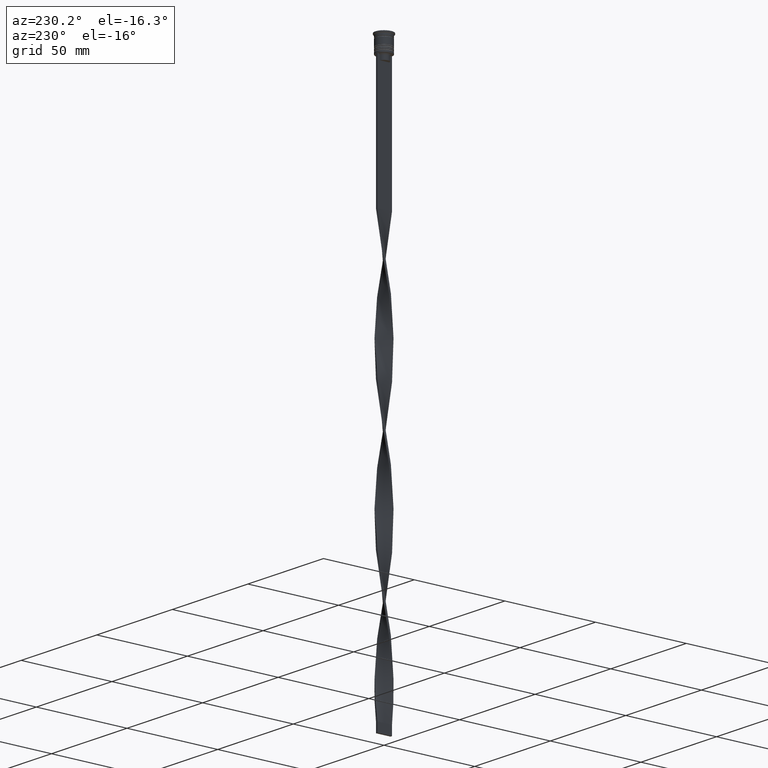
[diagram: clean part render]
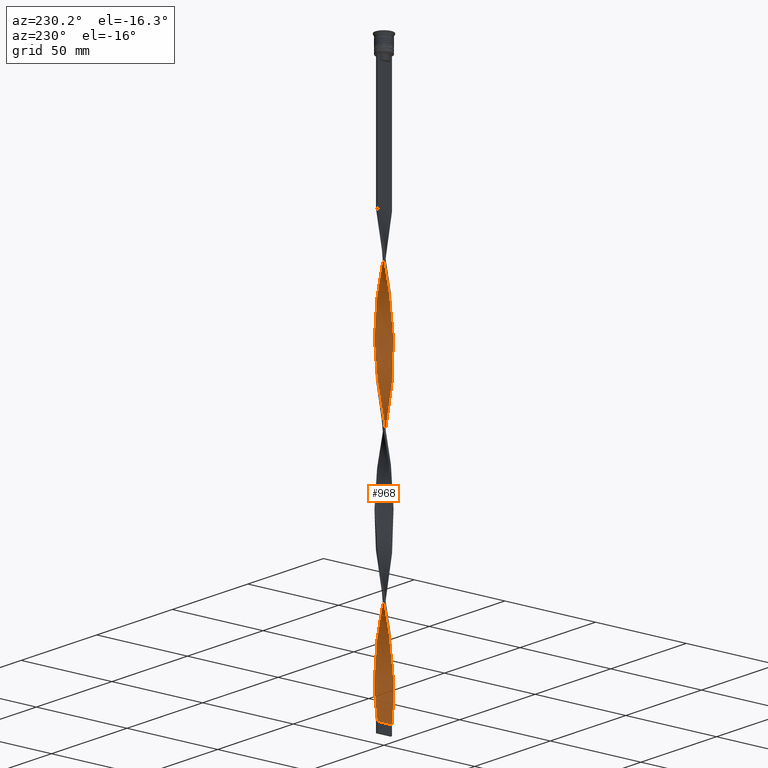
[diagram: same view with one face highlighted and labeled with its STEP entity id]
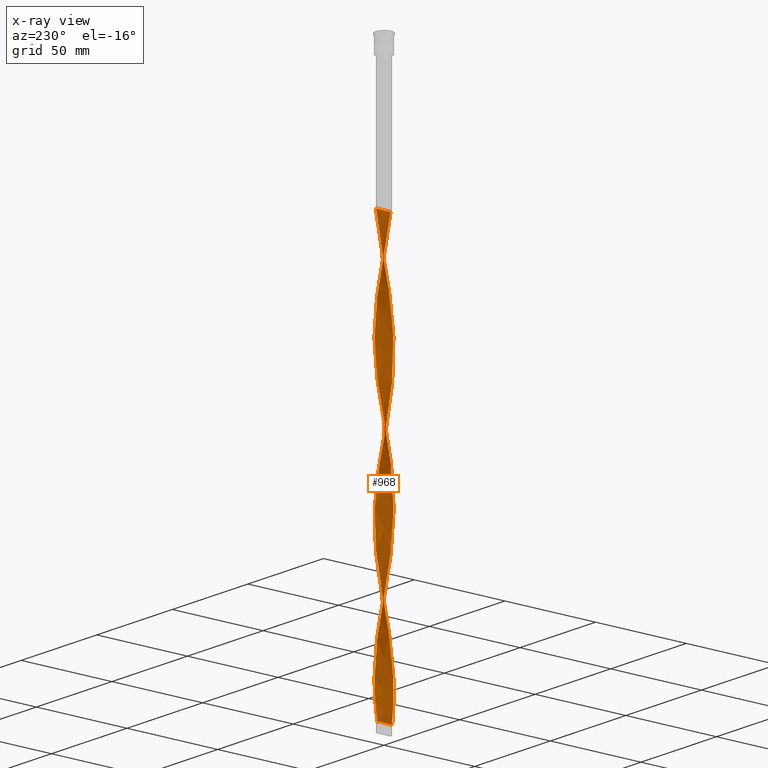
[diagram: x-ray of the same camera — body ghosted, the highlighted face saturated]
A machine part, auxiliary view. The second image highlights one B-rep face of the part: STEP entity #968.
The next image is the same camera in x-ray: the body ghosted, the highlighted face saturated — about 0% of this face is hidden behind the body in this view.
In plain terms, the highlighted face is a freeform B-spline surface patch.
Its self-contained STEP definition (entity closure, byte-faithful):
#15 = CARTESIAN_POINT ( 'NONE',  ( 3.475539122107560441, 2.069348470232189374, -207.1447368421052317 ) ) ;
#17 = CARTESIAN_POINT ( 'NONE',  ( -0.1685505501969314646, 4.041431181225382474, -151.5131578947368496 ) ) ;
#18 = CARTESIAN_POINT ( 'NONE',  ( -1.151559012824297401, -3.863147918470522413, -300.5263157894736992 ) ) ;
#28 = CARTESIAN_POINT ( 'NONE',  ( -4.000343807327721102, -0.4972418155935313666, -272.7105263157894797 ) ) ;
#35 = CARTESIAN_POINT ( 'NONE',  ( 1.771706497669051306, -3.620919232200196625, -236.9473684210526301 ) ) ;
#39 = CARTESIAN_POINT ( 'NONE',  ( 3.633328892441399116, 1.777778512611467576, -123.6973684210526443 ) ) ;
#40 = CARTESIAN_POINT ( 'NONE',  ( -1.471668575845527682, -3.767727018166428188, -298.5394736842104635 ) ) ;
#60 = CARTESIAN_POINT ( 'NONE',  ( 0.1651977094215750508, 4.027742508751256167, -149.5263157894736707 ) ) ;
#62 = CARTESIAN_POINT ( 'NONE',  ( 3.863941018946714490, -1.148895035284349442, -256.8157894736842195 ) ) ;
#81 = CARTESIAN_POINT ( 'NONE',  ( 2.349288341927600499, 3.292782951704461336, -286.6184210526315042 ) ) ;
#100 = CARTESIAN_POINT ( 'NONE',  ( -1.152832542896750967, 3.877183566532631520, -238.9342105263157521 ) ) ;
#101 = CARTESIAN_POINT ( 'NONE',  ( 4.000343807327721102, -0.4972418155935317552, -260.7894736842105203 ) ) ;
#125 = CARTESIAN_POINT ( 'NONE',  ( 0.4989459690400829817, 4.014053836277128973, -298.5394736842104635 ) ) ;
#132 = CARTESIAN_POINT ( 'NONE',  ( -4.000343807327721102, -0.4972418155935313666, -121.7105263157894797 ) ) ;
#142 = CARTESIAN_POINT ( 'NONE',  ( 3.633328892441399116, 1.777778512611467576, -274.6973684210526017 ) ) ;
#181 = CARTESIAN_POINT ( 'NONE',  ( 3.633328892441399116, -1.777778512611468464, -183.3026315789473699 ) ) ;
#195 = CARTESIAN_POINT ( 'NONE',  ( -3.959141175778332133, -0.8287197540840011145, -123.6973684210526443 ) ) ;
#198 = CARTESIAN_POINT ( 'NONE',  ( -0.4989459690400814829, 4.014053836277128973, -234.9605263157894228 ) ) ;
#199 = CARTESIAN_POINT ( 'NONE',  ( 3.959141175778332133, -0.8287197540840015586, -107.8026315789473557 ) ) ;
#217 = CARTESIAN_POINT ( 'NONE',  ( 3.087533734903235683, 2.613180192100605037, -211.1184210526315326 ) ) ;
#234 = CARTESIAN_POINT ( 'NONE',  ( -0.4999999999999994449, 4.000000000000000000, -304.5000000000000000 ) ) ;
#235 = CARTESIAN_POINT ( 'NONE',  ( 3.633328892441398672, 1.777778512611467576, -123.6973684210526443 ) ) ;
#241 = CARTESIAN_POINT ( 'NONE',  ( -2.615308476010500982, -3.085731170380873412, -139.5921052631579187 ) ) ;
#242 = CARTESIAN_POINT ( 'NONE',  ( 3.087533734903234350, -2.613180192100606813, -95.88157894736841058 ) ) ;
#258 = CARTESIAN_POINT ( 'NONE',  ( -0.1685505501969342679, -4.041431181225382474, -155.4868421052631220 ) ) ;
#260 = CARTESIAN_POINT ( 'NONE',  ( -0.8314494498030657876, 3.958568818774615750, -155.4868421052631504 ) ) ;
#261 = CARTESIAN_POINT ( 'NONE',  ( -3.462245594293745121, 2.064668361939406616, -256.8157894736842195 ) ) ;
#268 = CARTESIAN_POINT ( 'NONE',  ( 0.8258892559684172241, 3.945618701404880024, -296.5526315789473983 ) ) ;
#273 = CARTESIAN_POINT ( 'NONE',  ( -4.000343807327721102, 0.4972418155935313666, -185.2894736842105203 ) ) ;
#276 = CARTESIAN_POINT ( 'NONE',  ( -2.851421105456868332, 2.849455681240740557, -169.3947368421052602 ) ) ;
#295 = CARTESIAN_POINT ( 'NONE',  ( -0.1651977094215772157, -4.027742508751256167, -225.0263157894736992 ) ) ;
#296 = CARTESIAN_POINT ( 'NONE',  ( -0.8314494498030685632, -3.958568818774615750, -151.5131578947368496 ) ) ;
#298 = CARTESIAN_POINT ( 'NONE',  ( 3.075191833988901280, 2.606375871620971285, -129.6578947368421098 ) ) ;
#316 = CARTESIAN_POINT ( 'NONE',  ( -3.876387747932445560, -1.155505650454253574, -195.2236842105263008 ) ) ;
#317 = CARTESIAN_POINT ( 'NONE',  ( 3.754858320186921894, -1.466642081532861797, -185.2894736842105203 ) ) ;
#318 = CARTESIAN_POINT ( 'NONE',  ( -0.1651977094215772157, -4.027742508751256167, -225.0263157894736992 ) ) ;
#335 = CARTESIAN_POINT ( 'NONE',  ( -1.771706497669051084, 3.620919232200197069, -161.4473684210526301 ) ) ;
#336 = CARTESIAN_POINT ( 'NONE',  ( 2.071744419492577816, 3.474111446233964617, -219.0657894736841627 ) ) ;
#337 = CARTESIAN_POINT ( 'NONE',  ( -2.604254856879658409, -3.076988241839528015, -209.1315789473684390 ) ) ;
#349 = CARTESIAN_POINT ( 'NONE',  ( -3.768740862115096402, -1.469070316484696548, -278.6710526315789025 ) ) ;
#358 = CARTESIAN_POINT ( 'NONE',  ( -1.471668575845525240, 3.767727018166429076, -159.4605263157894797 ) ) ;
#371 = CARTESIAN_POINT ( 'NONE',  ( 1.771706497669051306, -3.620919232200196625, -85.94736842105263008 ) ) ;
#378 = CARTESIAN_POINT ( 'NONE',  ( -2.615308476010501426, -3.085731170380873412, -290.5921052631577481 ) ) ;
#385 = CARTESIAN_POINT ( 'NONE',  ( 3.945048299290513150, 0.8286096283926639439, -268.7368421052631788 ) ) ;
#393 = CARTESIAN_POINT ( 'NONE',  ( -2.859221371831710545, 2.861193531974598692, -99.85526315789472562 ) ) ;
#394 = CARTESIAN_POINT ( 'NONE',  ( 0.5000000000000000000, -4.000000000000000000, -78.00000000000000000 ) ) ;
#402 = CARTESIAN_POINT ( 'NONE',  ( 3.622139992111327533, -1.769209393358443627, -252.8421052631579187 ) ) ;
#423 = CARTESIAN_POINT ( 'NONE',  ( -3.622139992111327977, -1.769209393358442517, -129.6578947368421098 ) ) ;
#435 = CARTESIAN_POINT ( 'NONE',  ( 2.851421105456868332, -2.849455681240740557, -244.8947368421052886 ) ) ;
#458 = CARTESIAN_POINT ( 'NONE',  ( -3.633328892441398672, 1.777778512611468020, -107.8026315789473557 ) ) ;
#460 = CARTESIAN_POINT ( 'NONE',  ( -3.475539122107559553, -2.069348470232189374, -131.6447368421052602 ) ) ;
#468 = CARTESIAN_POINT ( 'NONE',  ( 3.945048299290513150, 0.8286096283926639439, -268.7368421052631788 ) ) ;
#480 = CARTESIAN_POINT ( 'NONE',  ( 4.041546438877109182, 0.1657638771030590097, -195.2236842105263008 ) ) ;
#501 = CARTESIAN_POINT ( 'NONE',  ( 2.349288341927600499, 3.292782951704461780, -135.6184210526315610 ) ) ;
#504 = CARTESIAN_POINT ( 'NONE',  ( 2.851421105456868776, 2.849455681240739668, -213.1052631578947398 ) ) ;
#518 = CARTESIAN_POINT ( 'NONE',  ( 1.151559012824296735, -3.863147918470522413, -81.97368421052631504 ) ) ;
#519 = CARTESIAN_POINT ( 'NONE',  ( 1.775272850193346796, -3.634553836156355633, -167.4078947368420813 ) ) ;
#520 = CARTESIAN_POINT ( 'NONE',  ( 3.622139992111327533, -1.769209393358443627, -101.8421052631579045 ) ) ;
#534 = CARTESIAN_POINT ( 'NONE',  ( 3.754858320186921894, 1.466642081532861797, -121.7105263157894797 ) ) ;
#537 = CARTESIAN_POINT ( 'NONE',  ( 4.013708850648581183, -0.5017136063310734251, -191.2499999999999716 ) ) ;
#562 = CARTESIAN_POINT ( 'NONE',  ( 2.859221371831710101, -2.861193531974599580, -175.3552631578947398 ) ) ;
#563 = CARTESIAN_POINT ( 'NONE',  ( 2.071744419492575595, -3.474111446233965506, -87.93421052631578050 ) ) ;
#570 = CARTESIAN_POINT ( 'NONE',  ( 3.291162296146090682, 2.351558211267345211, -278.6710526315789025 ) ) ;
#580 = CARTESIAN_POINT ( 'NONE',  ( -0.1685505501969314646, 4.041431181225382474, -151.5131578947368496 ) ) ;
#581 = CARTESIAN_POINT ( 'NONE',  ( 1.464052696545049548, -3.755868701344493132, -165.4210526315789593 ) ) ;
#582 = CARTESIAN_POINT ( 'NONE',  ( 2.349288341927600499, 3.292782951704461336, -135.6184210526315894 ) ) ;
#596 = CARTESIAN_POINT ( 'NONE',  ( -0.8258892559684176682, -3.945618701404880024, -221.0526315789473983 ) ) ;
#599 = CARTESIAN_POINT ( 'NONE',  ( -2.071744419492575151, 3.474111446233965950, -163.4342105263157805 ) ) ;
#617 = CARTESIAN_POINT ( 'NONE',  ( -4.013708850648581183, -0.5017136063310719818, -191.2499999999999432 ) ) ;
#618 = CARTESIAN_POINT ( 'NONE',  ( -0.4989459690400814273, 4.014053836277128973, -234.9605263157894228 ) ) ;
#620 = CARTESIAN_POINT ( 'NONE',  ( -3.281536428505396064, 2.341264331166400314, -173.3684210526315610 ) ) ;
#638 = CARTESIAN_POINT ( 'NONE',  ( 1.151559012824296735, -3.863147918470522413, -232.9736842105263293 ) ) ;
#640 = CARTESIAN_POINT ( 'NONE',  ( 3.291162296146090682, 2.351558211267345211, -127.6710526315789593 ) ) ;
#659 = CARTESIAN_POINT ( 'NONE',  ( 1.775272850193347685, 3.634553836156354745, -139.5921052631579187 ) ) ;
#660 = CARTESIAN_POINT ( 'NONE',  ( 4.027627644762845627, 0.1679748646140053203, -113.7631578947368496 ) ) ;
#661 = CARTESIAN_POINT ( 'NONE',  ( -4.013708850648581183, 0.5017136063310728700, -266.7499999999999432 ) ) ;
#664 = CARTESIAN_POINT ( 'NONE',  ( -3.462245594293745121, 2.064668361939406616, -105.8157894736842053 ) ) ;
#673 = CARTESIAN_POINT ( 'NONE',  ( -2.851421105456868776, -2.849455681240740113, -288.6052631578947398 ) ) ;
#681 = CARTESIAN_POINT ( 'NONE',  ( 3.768740862115096402, -1.469070316484696770, -254.8289473684210407 ) ) ;
#682 = CARTESIAN_POINT ( 'NONE',  ( -1.464052696545049548, 3.755868701344493132, -240.9210526315789309 ) ) ;
#701 = CARTESIAN_POINT ( 'NONE',  ( 3.863941018946714490, 1.148895035284349442, -201.1842105263158089 ) ) ;
#710 = CARTESIAN_POINT ( 'NONE',  ( -3.633328892441399116, 1.777778512611468020, -107.8026315789473557 ) ) ;
#718 = CARTESIAN_POINT ( 'NONE',  ( 2.851421105456868332, -2.849455681240740557, -244.8947368421052886 ) ) ;
#724 = CARTESIAN_POINT ( 'NONE',  ( -3.075191833988900836, 2.606375871620972173, -101.8421052631579045 ) ) ;
#729 = CARTESIAN_POINT ( 'NONE',  ( -1.771706497669051972, -3.620919232200196625, -296.5526315789473983 ) ) ;
#733 = CARTESIAN_POINT ( 'NONE',  ( 0.1651977094215750508, 4.027742508751256167, -300.5263157894736992 ) ) ;
#740 = CARTESIAN_POINT ( 'NONE',  ( -1.775272850193347685, 3.634553836156354745, -91.90789473684209554 ) ) ;
#776 = CARTESIAN_POINT ( 'NONE',  ( -0.8258892559684165580, 3.945618701404880024, -85.94736842105263008 ) ) ;
#793 = CARTESIAN_POINT ( 'NONE',  ( 3.475539122107559997, 2.069348470232188930, -207.1447368421052317 ) ) ;
#816 = CARTESIAN_POINT ( 'NONE',  ( 1.471668575845526350, -3.767727018166428632, -83.96052631578946546 ) ) ;
#817 = CARTESIAN_POINT ( 'NONE',  ( -3.754858320186921894, 1.466642081532862241, -260.7894736842105203 ) ) ;
#819 = CARTESIAN_POINT ( 'NONE',  ( 0.5000000000000000000, 4.000000000000000000, -78.00000000000000000 ) ) ;
#824 = CARTESIAN_POINT ( 'NONE',  ( 1.464052696545050436, 3.755868701344492688, -292.5789473684210407 ) ) ;
#832 = CARTESIAN_POINT ( 'NONE',  ( 1.152832542896750301, -3.877183566532631964, -163.4342105263157805 ) ) ;
#847 = CARTESIAN_POINT ( 'NONE',  ( -0.5000000000000002220, -1.333333333333333481, -304.5000000000000000 ) ) ;
#849 = CARTESIAN_POINT ( 'NONE',  ( 4.013708850648581183, 0.5017136063310724259, -115.7500000000000000 ) ) ;
#853 = CARTESIAN_POINT ( 'NONE',  ( -0.1651977094215744957, 4.027742508751256167, -232.9736842105263293 ) ) ;
#865 = CARTESIAN_POINT ( 'NONE',  ( -0.4999999999999994449, 4.000000000000000000, -304.5000000000000000 ) ) ;
#875 = CARTESIAN_POINT ( 'NONE',  ( 3.754858320186921894, 1.466642081532861797, -121.7105263157894797 ) ) ;
#878 =( BOUNDED_CURVE ( )  B_SPLINE_CURVE ( 2, ( #1156, #1080, #518, #816, #2628, #1404, #1098, #3289, #2028, #2317, #1739, #2967, #1440, #3329, #3712, #1558, #3028, #3411, #660, #1175, #959, #1812, #875, #39, #3087, #640, #298, #1520, #2748, #582, #3046, #1797, #3624, #3993, #1497, #1541, #1220, #17, #2091, #260, #3665, #2178, #1482, #599, #1263, #3391, #276, #2486, #620, #3010, #2726, #2400, #2709, #1855, #3942, #2770, #1241, #3970, #3348, #1197, #2426, #2444, #3645, #894, #3068, #2111, #337, #2463, #914, #2129, #3366, #3688, #936, #1835, #318, #2156, #2791, #3483, #3812, #2195, #1052, #1952, #2852, #1284, #718, #3735, #3756, #1360, #402, #2271, #62, #1619, #101, #3465, #3507, #2893, #385, #3153, #1932, #142, #2835, #1896, #3108, #1583, #2874, #81, #3169, #2581, #1000, #3135, #2816, #125, #733, #3191, #2238 ),
 .UNSPECIFIED., .F., .T. ) 
 B_SPLINE_CURVE_WITH_KNOTS ( ( 3, 2, 2, 2, 2, 2, 2, 2, 2, 2, 2, 2, 2, 2, 2, 2, 2, 2, 2, 2, 2, 2, 2, 2, 2, 2, 2, 2, 2, 2, 2, 2, 2, 2, 2, 2, 2, 2, 2, 2, 2, 2, 2, 2, 2, 2, 2, 2, 2, 2, 2, 2, 2, 2, 2, 2, 2, 3 ),
 ( 0.000000000000000000, 0.01315789473684210453, 0.02631578947368420907, 0.03947368421052631360, 0.05263157894736841813, 0.06578947368421052266, 0.07894736842105262720, 0.09210526315789473173, 0.1052631578947368363, 0.1184210526315789408, 0.1315789473684210453, 0.1447368421052631637, 0.1578947368421052544, 0.1710526315789473728, 0.1842105263157894635, 0.1973684210526315541, 0.2105263157894736725, 0.2236842105263157909, 0.2368421052631578816, 0.2500000000000000000, 0.2631578947368420907, 0.2763157894736842368, 0.2894736842105263275, 0.3026315789473684181, 0.3157894736842105088, 0.3289473684210526550, 0.3421052631578947456, 0.3552631578947368918, 0.3684210526315789269, 0.3815789473684210731, 0.3947368421052631082, 0.4078947368421052544, 0.4210526315789473450, 0.4342105263157895467, 0.4473684210526315819, 0.4605263157894736725, 0.4736842105263157632, 0.4868421052631579093, 0.5000000000000000000, 0.5131578947368421462, 0.5263157894736841813, 0.5394736842105263275, 0.5526315789473684736, 0.5657894736842105088, 0.5789473684210526550, 0.5921052631578946901, 0.6052631578947368363, 0.6184210526315789824, 0.6315789473684210176, 0.6447368421052631637, 0.6578947368421053099, 0.6710526315789473450, 0.6842105263157894912, 0.6973684210526315264, 0.7105263157894737835, 0.7236842105263158187, 0.7368421052631578538, 0.7500000000000000000 ),
 .UNSPECIFIED. ) 
 CURVE ( )  GEOMETRIC_REPRESENTATION_ITEM ( )  RATIONAL_B_SPLINE_CURVE ( ( 1.000000000000000000, 0.9965844930066698470, 1.000000000000000000, 0.9965844930066698470, 1.000000000000000000, 0.9965844930066698470, 1.000000000000000000, 0.9965844930066698470, 1.000000000000000000, 0.9965844930066698470, 1.000000000000000000, 0.9965844930066698470, 1.000000000000000000, 0.9965844930066698470, 1.000000000000000000, 0.9965844930066698470, 1.000000000000000000, 0.9965844930066698470, 1.000000000000000000, 0.9965844930066698470, 1.000000000000000000, 0.9965844930066698470, 1.000000000000000000, 0.9965844930066698470, 1.000000000000000000, 0.9965844930066698470, 1.000000000000000000, 0.9965844930066698470, 1.000000000000000000, 0.9965844930066698470, 1.000000000000000000, 0.9965844930066698470, 1.000000000000000000, 0.9965844930066698470, 1.000000000000000000, 0.9965844930066698470, 1.000000000000000000, 0.9965844930066698470, 1.000000000000000000, 0.9965844930066698470, 1.000000000000000000, 0.9965844930066698470, 1.000000000000000000, 0.9965844930066698470, 1.000000000000000000, 0.9965844930066698470, 1.000000000000000000, 0.9965844930066698470, 1.000000000000000000, 0.9965844930066698470, 1.000000000000000000, 0.9965844930066698470, 1.000000000000000000, 0.9965844930066698470, 1.000000000000000000, 0.9965844930066698470, 1.000000000000000000, 0.9965844930066698470, 1.000000000000000000, 0.9965844930066698470, 1.000000000000000000, 0.9965844930066698470, 1.000000000000000000, 0.9965844930066698470, 1.000000000000000000, 0.9965844930066698470, 1.000000000000000000, 0.9965844930066698470, 1.000000000000000000, 0.9965844930066698470, 1.000000000000000000, 0.9965844930066698470, 1.000000000000000000, 0.9965844930066698470, 1.000000000000000000, 0.9965844930066698470, 1.000000000000000000, 0.9965844930066698470, 1.000000000000000000, 0.9965844930066698470, 1.000000000000000000, 0.9965844930066698470, 1.000000000000000000, 0.9965844930066698470, 1.000000000000000000, 0.9965844930066698470, 1.000000000000000000, 0.9965844930066698470, 1.000000000000000000, 0.9965844930066698470, 1.000000000000000000, 0.9965844930066698470, 1.000000000000000000, 0.9965844930066698470, 1.000000000000000000, 0.9965844930066698470, 1.000000000000000000, 0.9965844930066698470, 1.000000000000000000, 0.9965844930066698470, 1.000000000000000000, 0.9965844930066698470, 1.000000000000000000, 0.9965844930066698470, 1.000000000000000000, 0.9965844930066698470, 1.000000000000000000, 0.9965844930066698470, 1.000000000000000000, 0.9965844930066698470, 1.000000000000000000, 0.9965844930066698470, 1.000000000000000000, 0.9965844930066698470, 1.000000000000000000 ) ) 
 REPRESENTATION_ITEM ( '' )  );
#891 = CARTESIAN_POINT ( 'NONE',  ( -3.462245594293745121, -2.064668361939406616, -201.1842105263158089 ) ) ;
#892 = CARTESIAN_POINT ( 'NONE',  ( -0.5000000000000005551, -4.000000000000000000, -153.5000000000000000 ) ) ;
#894 = CARTESIAN_POINT ( 'NONE',  ( -3.291162296146092014, -2.351558211267342990, -203.1710526315789593 ) ) ;
#896 = CARTESIAN_POINT ( 'NONE',  ( -4.041546438877109182, -0.1657638771030611746, -270.7236842105263008 ) ) ;
#904 = CARTESIAN_POINT ( 'NONE',  ( 2.062280596060475091, 3.463668393930408040, -288.6052631578947398 ) ) ;
#910 = CARTESIAN_POINT ( 'NONE',  ( 2.343526447751538733, -3.279921308307419903, -240.9210526315789309 ) ) ;
#911 = CARTESIAN_POINT ( 'NONE',  ( -0.4989459690400814273, 4.014053836277128973, -83.96052631578946546 ) ) ;
#912 = CARTESIAN_POINT ( 'NONE',  ( -3.622139992111327977, -1.769209393358442517, -129.6578947368421098 ) ) ;
#914 = CARTESIAN_POINT ( 'NONE',  ( -2.062280596060475979, -3.463668393930407596, -213.1052631578947398 ) ) ;
#915 = CARTESIAN_POINT ( 'NONE',  ( -4.027627644762845627, 0.1679748646140058199, -268.7368421052631788 ) ) ;
#919 = CARTESIAN_POINT ( 'NONE',  ( -0.5000000000000005551, -4.000000000000000000, -304.5000000000000000 ) ) ;
#925 = CARTESIAN_POINT ( 'NONE',  ( -3.876387747932444228, 1.155505650454256239, -262.7763157894735855 ) ) ;
#933 = CARTESIAN_POINT ( 'NONE',  ( -1.152832542896753409, -3.877183566532631520, -219.0657894736841627 ) ) ;
#936 = CARTESIAN_POINT ( 'NONE',  ( -0.8258892559684176682, -3.945618701404880024, -221.0526315789473983 ) ) ;
#937 = CARTESIAN_POINT ( 'NONE',  ( -3.959141175778332133, -0.8287197540840012255, -274.6973684210526017 ) ) ;
#951 = CARTESIAN_POINT ( 'NONE',  ( -3.959141175778332133, -0.8287197540840011145, -274.6973684210525448 ) ) ;
#956 = CARTESIAN_POINT ( 'NONE',  ( -4.027627644762845627, -0.1679748646140039048, -189.2631578947368496 ) ) ;
#959 = CARTESIAN_POINT ( 'NONE',  ( 3.945048299290513150, 0.8286096283926639439, -117.7368421052631646 ) ) ;
#960 = CARTESIAN_POINT ( 'NONE',  ( -2.071744419492577816, -3.474111446233965061, -294.5657894736841627 ) ) ;
#968 = ADVANCED_FACE ( 'NONE', ( #3151 ), #3218, .T. ) ;
#970 = CARTESIAN_POINT ( 'NONE',  ( -3.087533734903234350, -2.613180192100606813, -286.6184210526315042 ) ) ;
#976 = CARTESIAN_POINT ( 'NONE',  ( 0.5000000000000000000, 4.000000000000000000, -228.9999999999999716 ) ) ;
#983 = VERTEX_POINT ( 'NONE', #865 ) ;
#997 = CARTESIAN_POINT ( 'NONE',  ( 3.959141175778332133, -0.8287197540840015586, -258.8026315789473415 ) ) ;
#1000 = CARTESIAN_POINT ( 'NONE',  ( 1.464052696545050436, 3.755868701344492688, -292.5789473684210407 ) ) ;
#1018 = CARTESIAN_POINT ( 'NONE',  ( -3.075191833988900836, 2.606375871620972173, -101.8421052631579045 ) ) ;
#1027 = CARTESIAN_POINT ( 'NONE',  ( -1.152832542896751189, 3.877183566532631520, -87.93421052631578050 ) ) ;
#1052 = CARTESIAN_POINT ( 'NONE',  ( 1.771706497669051306, -3.620919232200196625, -236.9473684210526301 ) ) ;
#1059 = CARTESIAN_POINT ( 'NONE',  ( -3.876387747932444228, 1.155505650454256017, -111.7763157894736850 ) ) ;
#1080 = CARTESIAN_POINT ( 'NONE',  ( 0.8314494498030671199, -3.958568818774615750, -79.98684210526316463 ) ) ;
#1081 = CARTESIAN_POINT ( 'NONE',  ( -1.464052696545049548, 3.755868701344493132, -89.92105263157894512 ) ) ;
#1096 = CARTESIAN_POINT ( 'NONE',  ( 3.876387747932445116, 1.155505650454255795, -119.7236842105263150 ) ) ;
#1098 = CARTESIAN_POINT ( 'NONE',  ( 2.343526447751538733, -3.279921308307419903, -89.92105263157894512 ) ) ;
#1099 = CARTESIAN_POINT ( 'NONE',  ( 3.281536428505399172, 2.341264331166395873, -209.1315789473684390 ) ) ;
#1100 = CARTESIAN_POINT ( 'NONE',  ( 3.475539122107559997, -2.069348470232189818, -99.85526315789472562 ) ) ;
#1116 = CARTESIAN_POINT ( 'NONE',  ( 1.464052696545049548, -3.755868701344493132, -165.4210526315789593 ) ) ;
#1117 = CARTESIAN_POINT ( 'NONE',  ( 2.615308476010501426, -3.085731170380873412, -91.90789473684208133 ) ) ;
#1130 = CARTESIAN_POINT ( 'NONE',  ( 0.1651977094215750508, 4.027742508751256167, -300.5263157894736992 ) ) ;
#1141 = CARTESIAN_POINT ( 'NONE',  ( 0.5000000000000000000, 4.000000000000000000, -228.9999999999999716 ) ) ;
#1154 = CARTESIAN_POINT ( 'NONE',  ( -1.771706497669051972, -3.620919232200196625, -145.5526315789473699 ) ) ;
#1156 = CARTESIAN_POINT ( 'NONE',  ( 0.5000000000000000000, -4.000000000000000000, -78.00000000000000000 ) ) ;
#1157 = CARTESIAN_POINT ( 'NONE',  ( 0.1651977094215738573, -4.027742508751257056, -157.4736842105263293 ) ) ;
#1167 = CARTESIAN_POINT ( 'NONE',  ( 3.754858320186921894, 1.466642081532861797, -272.7105263157894797 ) ) ;
#1175 = CARTESIAN_POINT ( 'NONE',  ( 4.013708850648581183, 0.5017136063310724259, -115.7499999999999858 ) ) ;
#1176 = CARTESIAN_POINT ( 'NONE',  ( 3.945048299290513150, -0.8286096283926659423, -189.2631578947368496 ) ) ;
#1195 = CARTESIAN_POINT ( 'NONE',  ( -3.959141175778333022, 0.8287197540840020027, -183.3026315789473699 ) ) ;
#1197 = CARTESIAN_POINT ( 'NONE',  ( -3.876387747932445560, -1.155505650454253352, -195.2236842105263008 ) ) ;
#1204 = B_SPLINE_CURVE_WITH_KNOTS ( 'NONE', 3,
 ( #1774, #847, #3004, #234 ),
 .UNSPECIFIED., .F., .F.,
 ( 4, 4 ),
 ( 0.000000000000000000, 1.000000000000000000 ),
 .UNSPECIFIED. ) ;
#1217 = CARTESIAN_POINT ( 'NONE',  ( -3.768740862115095513, 1.469070316484698990, -179.3289473684210691 ) ) ;
#1218 = CARTESIAN_POINT ( 'NONE',  ( -2.343526447751539177, -3.279921308307419459, -141.5789473684210407 ) ) ;
#1220 = CARTESIAN_POINT ( 'NONE',  ( 0.1651977094215750508, 4.027742508751256167, -149.5263157894736707 ) ) ;
#1239 = CARTESIAN_POINT ( 'NONE',  ( -2.851421105456868332, 2.849455681240740557, -169.3947368421052602 ) ) ;
#1240 = CARTESIAN_POINT ( 'NONE',  ( 1.771706497669052194, 3.620919232200196181, -221.0526315789473983 ) ) ;
#1241 = CARTESIAN_POINT ( 'NONE',  ( -4.027627644762845627, -0.1679748646140039048, -189.2631578947368496 ) ) ;
#1242 = CARTESIAN_POINT ( 'NONE',  ( -3.475539122107559553, -2.069348470232189374, -282.6447368421052033 ) ) ;
#1247 = CARTESIAN_POINT ( 'NONE',  ( 1.151559012824296735, -3.863147918470522413, -81.97368421052631504 ) ) ;
#1258 = CARTESIAN_POINT ( 'NONE',  ( 2.071744419492575595, -3.474111446233965506, -238.9342105263157521 ) ) ;
#1261 = CARTESIAN_POINT ( 'NONE',  ( 3.633328892441398672, -1.777778512611468464, -183.3026315789473699 ) ) ;
#1263 = CARTESIAN_POINT ( 'NONE',  ( -2.343526447751538289, 3.279921308307419903, -165.4210526315789593 ) ) ;
#1264 = CARTESIAN_POINT ( 'NONE',  ( -3.768740862115096402, -1.469070316484696548, -278.6710526315789025 ) ) ;
#1274 = CARTESIAN_POINT ( 'NONE',  ( 1.471668575845526350, -3.767727018166428632, -83.96052631578946546 ) ) ;
#1282 = CARTESIAN_POINT ( 'NONE',  ( -2.343526447751538289, 3.279921308307419903, -165.4210526315789593 ) ) ;
#1283 = CARTESIAN_POINT ( 'NONE',  ( 4.027627644762845627, -0.1679748646140054313, -193.2368421052631504 ) ) ;
#1284 = CARTESIAN_POINT ( 'NONE',  ( 2.615308476010500982, -3.085731170380873412, -242.9078947368421098 ) ) ;
#1291 = DIRECTION ( 'NONE',  ( 0.000000000000000000, 1.000000000000000000, 0.000000000000000000 ) ) ;
#1328 = VECTOR ( 'NONE', #1291, 1000.000000000000000 ) ;
#1331 = CARTESIAN_POINT ( 'NONE',  ( 3.075191833988901280, 2.606375871620971285, -280.6578947368420813 ) ) ;
#1346 = CARTESIAN_POINT ( 'NONE',  ( -3.087533734903234350, -2.613180192100606813, -135.6184210526315894 ) ) ;
#1349 = CARTESIAN_POINT ( 'NONE',  ( 0.5000000000000000000, -4.000000000000000000, -78.00000000000000000 ) ) ;
#1360 = CARTESIAN_POINT ( 'NONE',  ( 3.475539122107559553, -2.069348470232189374, -250.8552631578947398 ) ) ;
#1388 = CARTESIAN_POINT ( 'NONE',  ( -2.071744419492577371, -3.474111446233965061, -294.5657894736841627 ) ) ;
#1402 = CARTESIAN_POINT ( 'NONE',  ( -3.754858320186921894, 1.466642081532862241, -109.7894736842105203 ) ) ;
#1404 = CARTESIAN_POINT ( 'NONE',  ( 2.071744419492576039, -3.474111446233965506, -87.93421052631578050 ) ) ;
#1405 = CARTESIAN_POINT ( 'NONE',  ( 2.062280596060474647, -3.463668393930408929, -169.3947368421052602 ) ) ;
#1424 = CARTESIAN_POINT ( 'NONE',  ( -2.062280596060474647, 3.463668393930408484, -244.8947368421052886 ) ) ;
#1440 = CARTESIAN_POINT ( 'NONE',  ( 3.622139992111327533, -1.769209393358443627, -101.8421052631579045 ) ) ;
#1441 = CARTESIAN_POINT ( 'NONE',  ( 2.343526447751540953, 3.279921308307418126, -217.0789473684210407 ) ) ;
#1465 = CARTESIAN_POINT ( 'NONE',  ( -3.291162296146090682, 2.351558211267345211, -254.8289473684210407 ) ) ;
#1482 = CARTESIAN_POINT ( 'NONE',  ( -1.771706497669051084, 3.620919232200197069, -161.4473684210526301 ) ) ;
#1483 = CARTESIAN_POINT ( 'NONE',  ( -1.152832542896751189, 3.877183566532631520, -238.9342105263157805 ) ) ;
#1484 = CARTESIAN_POINT ( 'NONE',  ( 2.343526447751538733, -3.279921308307419903, -89.92105263157894512 ) ) ;
#1495 = CARTESIAN_POINT ( 'NONE',  ( -4.041546438877107406, 0.1657638771030640612, -187.2763157894736707 ) ) ;
#1497 = CARTESIAN_POINT ( 'NONE',  ( 0.8258892559684172241, 3.945618701404880024, -145.5526315789473699 ) ) ;
#1516 = CARTESIAN_POINT ( 'NONE',  ( 0.5000000000000000000, -4.000000000000000000, -228.9999999999999716 ) ) ;
#1518 = CARTESIAN_POINT ( 'NONE',  ( 1.775272850193346796, -3.634553836156355633, -167.4078947368420813 ) ) ;
#1520 = CARTESIAN_POINT ( 'NONE',  ( 2.859221371831710545, 2.861193531974598692, -131.6447368421052602 ) ) ;
#1522 = CARTESIAN_POINT ( 'NONE',  ( -2.615308476010500982, -3.085731170380873412, -290.5921052631578050 ) ) ;
#1528 = CARTESIAN_POINT ( 'NONE',  ( 4.013708850648581183, 0.5017136063310724259, -266.7499999999999432 ) ) ;
#1537 = ORIENTED_EDGE ( 'NONE', *, *, #2659, .F. ) ;
#1538 = CARTESIAN_POINT ( 'NONE',  ( -0.4999999999999994449, 4.000000000000000000, -153.5000000000000000 ) ) ;
#1540 = CARTESIAN_POINT ( 'NONE',  ( 3.622139992111328866, 1.769209393358442073, -205.1578947368420813 ) ) ;
#1541 = CARTESIAN_POINT ( 'NONE',  ( 0.4989459690400829817, 4.014053836277128973, -147.5394736842105203 ) ) ;
#1557 = CARTESIAN_POINT ( 'NONE',  ( -0.1651977094215744957, 4.027742508751256167, -232.9736842105263293 ) ) ;
#1558 = CARTESIAN_POINT ( 'NONE',  ( 3.959141175778332133, -0.8287197540840016696, -107.8026315789473557 ) ) ;
#1559 = CARTESIAN_POINT ( 'NONE',  ( -3.622139992111327977, -1.769209393358442517, -280.6578947368420813 ) ) ;
#1561 = CARTESIAN_POINT ( 'NONE',  ( 4.000343807327721102, -0.4972418155935317552, -109.7894736842105203 ) ) ;
#1570 = CARTESIAN_POINT ( 'NONE',  ( -3.281536428505397396, -2.341264331166397206, -284.6315789473683822 ) ) ;
#1577 = CARTESIAN_POINT ( 'NONE',  ( -2.071744419492574707, 3.474111446233965950, -163.4342105263157805 ) ) ;
#1578 = CARTESIAN_POINT ( 'NONE',  ( -0.8258892559684165580, 3.945618701404880024, -236.9473684210526301 ) ) ;
#1583 = CARTESIAN_POINT ( 'NONE',  ( 2.859221371831710545, 2.861193531974598692, -282.6447368421052033 ) ) ;
#1600 = CARTESIAN_POINT ( 'NONE',  ( 4.000343807327721102, 0.4972418155935300343, -197.2105263157894797 ) ) ;
#1616 = CARTESIAN_POINT ( 'NONE',  ( -1.464052696545049548, 3.755868701344493132, -89.92105263157894512 ) ) ;
#1617 = CARTESIAN_POINT ( 'NONE',  ( 2.615308476010501870, 3.085731170380873412, -215.0921052631578902 ) ) ;
#1619 = CARTESIAN_POINT ( 'NONE',  ( 3.959141175778332133, -0.8287197540840016696, -258.8026315789473415 ) ) ;
#1626 = CARTESIAN_POINT ( 'NONE',  ( -4.013708850648581183, 0.5017136063310728700, -115.7499999999999858 ) ) ;
#1645 = CARTESIAN_POINT ( 'NONE',  ( 0.5000000000000000000, 4.000000000000000000, -78.00000000000000000 ) ) ;
#1673 = CARTESIAN_POINT ( 'NONE',  ( -2.062280596060474647, 3.463668393930408484, -93.89473684210526017 ) ) ;
#1681 = CARTESIAN_POINT ( 'NONE',  ( -4.013708850648581183, 0.5017136063310728700, -115.7500000000000000 ) ) ;
#1683 = CARTESIAN_POINT ( 'NONE',  ( -3.281536428505397396, -2.341264331166397206, -133.6315789473684390 ) ) ;
#1696 =( BOUNDED_CURVE ( )  B_SPLINE_CURVE ( 2, ( #1645, #3763, #2555, #3785, #776, #1027, #1081, #740, #2301, #2608, #3143, #393, #724, #2225, #3513, #710, #1923, #1059, #3160, #1626, #2859, #2246, #132, #3474, #1938, #3175, #423, #460, #1683, #1346, #2571, #241, #3923, #1702, #3902, #3878, #2380, #2692, #2363, #3273, #1157, #3604, #3860, #832, #1116, #519, #1405, #2318, #2710, #562, #2010, #2401, #3625, #181, #3943, #1782, #1176, #537, #2629, #480, #1723, #1740, #2968, #3546, #2029, #793, #1099, #217, #504, #1755, #1441, #2988, #3258, #3233, #2671, #2950, #1141, #2069, #853, #198, #3310, #1483, #3588, #1988, #1424, #2649, #2935, #3011, #2340, #1465, #261, #3572, #817, #2047, #3290, #661, #915, #896, #3646, #937, #1813, #1264, #1559, #1242, #2130, #2792, #2157, #1522, #2179, #960, #1798, #40, #18, #3412, #2488 ),
 .UNSPECIFIED., .F., .T. ) 
 B_SPLINE_CURVE_WITH_KNOTS ( ( 3, 2, 2, 2, 2, 2, 2, 2, 2, 2, 2, 2, 2, 2, 2, 2, 2, 2, 2, 2, 2, 2, 2, 2, 2, 2, 2, 2, 2, 2, 2, 2, 2, 2, 2, 2, 2, 2, 2, 2, 2, 2, 2, 2, 2, 2, 2, 2, 2, 2, 2, 2, 2, 2, 2, 2, 2, 3 ),
 ( 0.000000000000000000, 0.01315789473684210453, 0.02631578947368420907, 0.03947368421052631360, 0.05263157894736841813, 0.06578947368421052266, 0.07894736842105262720, 0.09210526315789473173, 0.1052631578947368363, 0.1184210526315789408, 0.1315789473684210453, 0.1447368421052631637, 0.1578947368421052544, 0.1710526315789473728, 0.1842105263157894635, 0.1973684210526315541, 0.2105263157894736725, 0.2236842105263157909, 0.2368421052631578816, 0.2500000000000000000, 0.2631578947368420907, 0.2763157894736842368, 0.2894736842105263275, 0.3026315789473684181, 0.3157894736842105088, 0.3289473684210526550, 0.3421052631578947456, 0.3552631578947368918, 0.3684210526315789269, 0.3815789473684210731, 0.3947368421052631082, 0.4078947368421052544, 0.4210526315789473450, 0.4342105263157895467, 0.4473684210526315819, 0.4605263157894736725, 0.4736842105263157632, 0.4868421052631579093, 0.5000000000000000000, 0.5131578947368421462, 0.5263157894736841813, 0.5394736842105263275, 0.5526315789473684736, 0.5657894736842105088, 0.5789473684210526550, 0.5921052631578946901, 0.6052631578947368363, 0.6184210526315789824, 0.6315789473684210176, 0.6447368421052631637, 0.6578947368421053099, 0.6710526315789473450, 0.6842105263157894912, 0.6973684210526315264, 0.7105263157894737835, 0.7236842105263158187, 0.7368421052631578538, 0.7500000000000000000 ),
 .UNSPECIFIED. ) 
 CURVE ( )  GEOMETRIC_REPRESENTATION_ITEM ( )  RATIONAL_B_SPLINE_CURVE ( ( 1.000000000000000000, 0.9965844930066698470, 1.000000000000000000, 0.9965844930066698470, 1.000000000000000000, 0.9965844930066698470, 1.000000000000000000, 0.9965844930066698470, 1.000000000000000000, 0.9965844930066698470, 1.000000000000000000, 0.9965844930066698470, 1.000000000000000000, 0.9965844930066698470, 1.000000000000000000, 0.9965844930066698470, 1.000000000000000000, 0.9965844930066698470, 1.000000000000000000, 0.9965844930066698470, 1.000000000000000000, 0.9965844930066698470, 1.000000000000000000, 0.9965844930066698470, 1.000000000000000000, 0.9965844930066698470, 1.000000000000000000, 0.9965844930066698470, 1.000000000000000000, 0.9965844930066698470, 1.000000000000000000, 0.9965844930066698470, 1.000000000000000000, 0.9965844930066698470, 1.000000000000000000, 0.9965844930066698470, 1.000000000000000000, 0.9965844930066698470, 1.000000000000000000, 0.9965844930066698470, 1.000000000000000000, 0.9965844930066698470, 1.000000000000000000, 0.9965844930066698470, 1.000000000000000000, 0.9965844930066698470, 1.000000000000000000, 0.9965844930066698470, 1.000000000000000000, 0.9965844930066698470, 1.000000000000000000, 0.9965844930066698470, 1.000000000000000000, 0.9965844930066698470, 1.000000000000000000, 0.9965844930066698470, 1.000000000000000000, 0.9965844930066698470, 1.000000000000000000, 0.9965844930066698470, 1.000000000000000000, 0.9965844930066698470, 1.000000000000000000, 0.9965844930066698470, 1.000000000000000000, 0.9965844930066698470, 1.000000000000000000, 0.9965844930066698470, 1.000000000000000000, 0.9965844930066698470, 1.000000000000000000, 0.9965844930066698470, 1.000000000000000000, 0.9965844930066698470, 1.000000000000000000, 0.9965844930066698470, 1.000000000000000000, 0.9965844930066698470, 1.000000000000000000, 0.9965844930066698470, 1.000000000000000000, 0.9965844930066698470, 1.000000000000000000, 0.9965844930066698470, 1.000000000000000000, 0.9965844930066698470, 1.000000000000000000, 0.9965844930066698470, 1.000000000000000000, 0.9965844930066698470, 1.000000000000000000, 0.9965844930066698470, 1.000000000000000000, 0.9965844930066698470, 1.000000000000000000, 0.9965844930066698470, 1.000000000000000000, 0.9965844930066698470, 1.000000000000000000, 0.9965844930066698470, 1.000000000000000000, 0.9965844930066698470, 1.000000000000000000, 0.9965844930066698470, 1.000000000000000000, 0.9965844930066698470, 1.000000000000000000, 0.9965844930066698470, 1.000000000000000000, 0.9965844930066698470, 1.000000000000000000, 0.9965844930066698470, 1.000000000000000000, 0.9965844930066698470, 1.000000000000000000 ) ) 
 REPRESENTATION_ITEM ( '' )  );
#1702 = CARTESIAN_POINT ( 'NONE',  ( -2.071744419492577816, -3.474111446233965061, -143.5657894736841911 ) ) ;
#1705 = ORIENTED_EDGE ( 'NONE', *, *, #1980, .T. ) ;
#1723 = CARTESIAN_POINT ( 'NONE',  ( 4.000343807327721102, 0.4972418155935300343, -197.2105263157894797 ) ) ;
#1730 = CARTESIAN_POINT ( 'NONE',  ( -1.151559012824297401, -3.863147918470522413, -300.5263157894736992 ) ) ;
#1738 = CARTESIAN_POINT ( 'NONE',  ( 3.291162296146088906, -2.351558211267347431, -179.3289473684210691 ) ) ;
#1739 = CARTESIAN_POINT ( 'NONE',  ( 3.281536428505396952, -2.341264331166398982, -97.86842105263157521 ) ) ;
#1740 = CARTESIAN_POINT ( 'NONE',  ( 3.959141175778333022, 0.8287197540840007814, -199.1973684210526017 ) ) ;
#1755 = CARTESIAN_POINT ( 'NONE',  ( 2.615308476010501426, 3.085731170380873412, -215.0921052631578902 ) ) ;
#1774 = CARTESIAN_POINT ( 'NONE',  ( -0.5000000000000005551, -4.000000000000000000, -304.5000000000000000 ) ) ;
#1778 = CARTESIAN_POINT ( 'NONE',  ( 3.945048299290513150, 0.8286096283926639439, -117.7368421052631646 ) ) ;
#1779 = CARTESIAN_POINT ( 'NONE',  ( -1.471668575845527682, -3.767727018166428188, -147.5394736842105203 ) ) ;
#1782 = CARTESIAN_POINT ( 'NONE',  ( 3.876387747932443784, -1.155505650454258459, -187.2763157894736707 ) ) ;
#1795 = CARTESIAN_POINT ( 'NONE',  ( 2.062280596060474647, -3.463668393930408929, -169.3947368421052602 ) ) ;
#1797 = CARTESIAN_POINT ( 'NONE',  ( 1.775272850193347685, 3.634553836156354745, -139.5921052631579187 ) ) ;
#1798 = CARTESIAN_POINT ( 'NONE',  ( -1.771706497669051972, -3.620919232200196625, -296.5526315789473983 ) ) ;
#1809 = CARTESIAN_POINT ( 'NONE',  ( -3.281536428505396064, 2.341264331166400314, -173.3684210526315610 ) ) ;
#1810 = CARTESIAN_POINT ( 'NONE',  ( 2.604254856879654412, -3.076988241839531568, -173.3684210526315610 ) ) ;
#1812 = CARTESIAN_POINT ( 'NONE',  ( 3.876387747932445116, 1.155505650454255573, -119.7236842105263150 ) ) ;
#1813 = CARTESIAN_POINT ( 'NONE',  ( -3.863941018946714934, -1.148895035284348332, -276.6842105263158373 ) ) ;
#1833 = CARTESIAN_POINT ( 'NONE',  ( 0.8258892559684172241, 3.945618701404880024, -145.5526315789473699 ) ) ;
#1835 = CARTESIAN_POINT ( 'NONE',  ( -0.4989459690400818714, -4.014053836277128973, -223.0394736842104919 ) ) ;
#1848 = CARTESIAN_POINT ( 'NONE',  ( -2.859221371831710989, 2.861193531974598692, -250.8552631578947683 ) ) ;
#1853 = CARTESIAN_POINT ( 'NONE',  ( -3.475539122107559553, 2.069348470232190706, -175.3552631578947398 ) ) ;
#1854 = CARTESIAN_POINT ( 'NONE',  ( 3.876387747932443784, -1.155505650454258459, -187.2763157894736707 ) ) ;
#1855 = CARTESIAN_POINT ( 'NONE',  ( -3.959141175778333022, 0.8287197540840021137, -183.3026315789473699 ) ) ;
#1892 = CARTESIAN_POINT ( 'NONE',  ( 3.863941018946714490, -1.148895035284349442, -256.8157894736842195 ) ) ;
#1896 = CARTESIAN_POINT ( 'NONE',  ( 3.291162296146090682, 2.351558211267345211, -278.6710526315789025 ) ) ;
#1911 = CARTESIAN_POINT ( 'NONE',  ( 4.000343807327721102, -0.4972418155935317552, -260.7894736842105203 ) ) ;
#1913 = CARTESIAN_POINT ( 'NONE',  ( 1.471668575845526794, 3.767727018166428188, -223.0394736842104635 ) ) ;
#1923 = CARTESIAN_POINT ( 'NONE',  ( -3.754858320186921894, 1.466642081532862241, -109.7894736842105203 ) ) ;
#1927 = CARTESIAN_POINT ( 'NONE',  ( -3.075191833988900836, 2.606375871620972173, -252.8421052631579187 ) ) ;
#1932 = CARTESIAN_POINT ( 'NONE',  ( 3.754858320186921894, 1.466642081532861797, -272.7105263157894797 ) ) ;
#1938 = CARTESIAN_POINT ( 'NONE',  ( -3.863941018946714934, -1.148895035284348332, -125.6842105263157805 ) ) ;
#1952 = CARTESIAN_POINT ( 'NONE',  ( 2.071744419492576039, -3.474111446233965506, -238.9342105263157805 ) ) ;
#1980 = EDGE_CURVE ( 'NONE', #2329, #983, #878, .T. ) ;
#1988 = CARTESIAN_POINT ( 'NONE',  ( -1.775272850193347685, 3.634553836156354745, -242.9078947368421098 ) ) ;
#2005 = CARTESIAN_POINT ( 'NONE',  ( 2.604254856879656632, 3.076988241839529348, -133.6315789473684390 ) ) ;
#2010 = CARTESIAN_POINT ( 'NONE',  ( 3.075191833988900836, -2.606375871620972173, -177.3421052631579187 ) ) ;
#2028 = CARTESIAN_POINT ( 'NONE',  ( 2.851421105456868332, -2.849455681240740557, -93.89473684210526017 ) ) ;
#2029 = CARTESIAN_POINT ( 'NONE',  ( 3.622139992111328866, 1.769209393358442073, -205.1578947368420813 ) ) ;
#2047 = CARTESIAN_POINT ( 'NONE',  ( -3.876387747932444228, 1.155505650454256017, -262.7763157894736423 ) ) ;
#2055 = CARTESIAN_POINT ( 'NONE',  ( -1.471668575845527682, -3.767727018166428188, -298.5394736842104635 ) ) ;
#2069 = CARTESIAN_POINT ( 'NONE',  ( 0.1685505501969328801, 4.041431181225382474, -230.9868421052631220 ) ) ;
#2091 = CARTESIAN_POINT ( 'NONE',  ( -0.4999999999999994449, 4.000000000000000000, -153.5000000000000000 ) ) ;
#2106 = CARTESIAN_POINT ( 'NONE',  ( -1.464052696545052212, -3.755868701344492244, -217.0789473684210407 ) ) ;
#2107 = CARTESIAN_POINT ( 'NONE',  ( 2.349288341927599610, -3.292782951704463112, -171.3815789473684390 ) ) ;
#2111 = CARTESIAN_POINT ( 'NONE',  ( -2.859221371831710989, -2.861193531974598248, -207.1447368421052317 ) ) ;
#2120 = CARTESIAN_POINT ( 'NONE',  ( 1.775272850193347685, 3.634553836156354745, -290.5921052631577481 ) ) ;
#2125 = CARTESIAN_POINT ( 'NONE',  ( -3.863941018946714046, 1.148895035284350996, -181.3157894736842195 ) ) ;
#2126 = CARTESIAN_POINT ( 'NONE',  ( -0.8258892559684165580, 3.945618701404880024, -85.94736842105263008 ) ) ;
#2127 = CARTESIAN_POINT ( 'NONE',  ( -3.281536428505397396, -2.341264331166397206, -133.6315789473684390 ) ) ;
#2129 = CARTESIAN_POINT ( 'NONE',  ( -1.775272850193348129, -3.634553836156354745, -215.0921052631578902 ) ) ;
#2130 = CARTESIAN_POINT ( 'NONE',  ( -3.281536428505397396, -2.341264331166397206, -284.6315789473683822 ) ) ;
#2144 = CARTESIAN_POINT ( 'NONE',  ( -3.945048299290513150, 0.8286096283926643880, -264.7631578947368780 ) ) ;
#2156 = CARTESIAN_POINT ( 'NONE',  ( 0.1685505501969309927, -4.041431181225382474, -227.0131578947368212 ) ) ;
#2157 = CARTESIAN_POINT ( 'NONE',  ( -2.851421105456868776, -2.849455681240740113, -288.6052631578947398 ) ) ;
#2170 = CARTESIAN_POINT ( 'NONE',  ( -3.863941018946714934, -1.148895035284348332, -276.6842105263158373 ) ) ;
#2175 = CARTESIAN_POINT ( 'NONE',  ( 0.1685505501969309927, -4.041431181225382474, -227.0131578947368212 ) ) ;
#2176 = CARTESIAN_POINT ( 'NONE',  ( 4.013708850648581183, -0.5017136063310734251, -191.2499999999999432 ) ) ;
#2178 = CARTESIAN_POINT ( 'NONE',  ( -1.471668575845525240, 3.767727018166429076, -159.4605263157894797 ) ) ;
#2179 = CARTESIAN_POINT ( 'NONE',  ( -2.343526447751539177, -3.279921308307419459, -292.5789473684210407 ) ) ;
#2194 = CARTESIAN_POINT ( 'NONE',  ( 3.475539122107559997, -2.069348470232189818, -250.8552631578947683 ) ) ;
#2195 = CARTESIAN_POINT ( 'NONE',  ( 1.471668575845526350, -3.767727018166428632, -234.9605263157894228 ) ) ;
#2225 = CARTESIAN_POINT ( 'NONE',  ( -3.291162296146090682, 2.351558211267345211, -103.8289473684210407 ) ) ;
#2233 = CARTESIAN_POINT ( 'NONE',  ( -3.291162296146090682, 2.351558211267345211, -103.8289473684210265 ) ) ;
#2234 = CARTESIAN_POINT ( 'NONE',  ( -1.775272850193347685, 3.634553836156354745, -242.9078947368421098 ) ) ;
#2238 = CARTESIAN_POINT ( 'NONE',  ( -0.4999999999999994449, 4.000000000000000000, -304.5000000000000000 ) ) ;
#2246 = CARTESIAN_POINT ( 'NONE',  ( -4.041546438877109182, -0.1657638771030611746, -119.7236842105263150 ) ) ;
#2268 = CARTESIAN_POINT ( 'NONE',  ( 3.281536428505396952, -2.341264331166398982, -248.8684210526315610 ) ) ;
#2271 = CARTESIAN_POINT ( 'NONE',  ( 3.768740862115096402, -1.469070316484696770, -254.8289473684210407 ) ) ;
#2298 = CARTESIAN_POINT ( 'NONE',  ( -4.000343807327721102, -0.4972418155935313666, -121.7105263157894797 ) ) ;
#2301 = CARTESIAN_POINT ( 'NONE',  ( -2.062280596060474647, 3.463668393930408484, -93.89473684210526017 ) ) ;
#2315 = CARTESIAN_POINT ( 'NONE',  ( 3.075191833988901280, 2.606375871620971285, -129.6578947368421098 ) ) ;
#2317 = CARTESIAN_POINT ( 'NONE',  ( 3.087533734903234350, -2.613180192100606813, -95.88157894736841058 ) ) ;
#2318 = CARTESIAN_POINT ( 'NONE',  ( 2.349288341927599610, -3.292782951704462668, -171.3815789473684390 ) ) ;
#2329 = VERTEX_POINT ( 'NONE', #1349 ) ;
#2340 = CARTESIAN_POINT ( 'NONE',  ( -3.075191833988900836, 2.606375871620972173, -252.8421052631579187 ) ) ;
#2351 = CARTESIAN_POINT ( 'NONE',  ( -0.4999999999999994449, 4.000000000000000000, -304.5000000000000000 ) ) ;
#2353 = ORIENTED_EDGE ( 'NONE', *, *, #2862, .F. ) ;
#2363 = CARTESIAN_POINT ( 'NONE',  ( -0.5000000000000005551, -4.000000000000000000, -153.5000000000000000 ) ) ;
#2380 = CARTESIAN_POINT ( 'NONE',  ( -1.151559012824297401, -3.863147918470522413, -149.5263157894736707 ) ) ;
#2388 = CARTESIAN_POINT ( 'NONE',  ( 3.633328892441398672, 1.777778512611467576, -274.6973684210525448 ) ) ;
#2398 = CARTESIAN_POINT ( 'NONE',  ( 0.8258892559684163359, -3.945618701404880913, -161.4473684210526301 ) ) ;
#2400 = CARTESIAN_POINT ( 'NONE',  ( -3.768740862115095513, 1.469070316484699212, -179.3289473684210691 ) ) ;
#2401 = CARTESIAN_POINT ( 'NONE',  ( 3.291162296146088906, -2.351558211267347431, -179.3289473684210691 ) ) ;
#2417 = CARTESIAN_POINT ( 'NONE',  ( -0.1685505501969314646, 4.041431181225382474, -302.5131578947367643 ) ) ;
#2423 = CARTESIAN_POINT ( 'NONE',  ( -1.775272850193348129, -3.634553836156354745, -215.0921052631578902 ) ) ;
#2424 = CARTESIAN_POINT ( 'NONE',  ( -2.615308476010501426, -3.085731170380873412, -139.5921052631579187 ) ) ;
#2426 = CARTESIAN_POINT ( 'NONE',  ( -3.754858320186922338, -1.466642081532860464, -197.2105263157894797 ) ) ;
#2428 = VERTEX_POINT ( 'NONE', #819 ) ;
#2441 = CARTESIAN_POINT ( 'NONE',  ( 1.152832542896752965, 3.877183566532631076, -143.5657894736842195 ) ) ;
#2442 = CARTESIAN_POINT ( 'NONE',  ( 0.1685505501969329079, 4.041431181225382474, -79.98684210526316463 ) ) ;
#2444 = CARTESIAN_POINT ( 'NONE',  ( -3.633328892441399116, -1.777778512611467132, -199.1973684210526017 ) ) ;
#2453 = CARTESIAN_POINT ( 'NONE',  ( -3.633328892441398672, 1.777778512611468020, -258.8026315789473415 ) ) ;
#2459 = CARTESIAN_POINT ( 'NONE',  ( -3.075191833988901724, -2.606375871620970841, -205.1578947368420813 ) ) ;
#2460 = CARTESIAN_POINT ( 'NONE',  ( -2.604254856879656188, 3.076988241839530236, -248.8684210526315610 ) ) ;
#2463 = CARTESIAN_POINT ( 'NONE',  ( -2.349288341927602719, -3.292782951704460448, -211.1184210526315326 ) ) ;
#2483 = CARTESIAN_POINT ( 'NONE',  ( -3.087533734903233906, 2.613180192100608146, -171.3815789473684390 ) ) ;
#2486 = CARTESIAN_POINT ( 'NONE',  ( -3.087533734903234350, 2.613180192100608146, -171.3815789473684390 ) ) ;
#2488 = CARTESIAN_POINT ( 'NONE',  ( -0.5000000000000005551, -4.000000000000000000, -304.5000000000000000 ) ) ;
#2491 = CARTESIAN_POINT ( 'NONE',  ( 4.027627644762845627, 0.1679748646140053203, -113.7631578947368496 ) ) ;
#2506 = CARTESIAN_POINT ( 'NONE',  ( 4.041546438877108294, 0.1657638771030589819, -195.2236842105263008 ) ) ;
#2519 = CARTESIAN_POINT ( 'NONE',  ( -4.041546438877108294, -0.1657638771030611746, -270.7236842105262440 ) ) ;
#2545 = CARTESIAN_POINT ( 'NONE',  ( -2.859221371831710989, 2.861193531974598692, -99.85526315789472562 ) ) ;
#2546 = CARTESIAN_POINT ( 'NONE',  ( -2.349288341927600499, 3.292782951704461780, -246.8815789473684674 ) ) ;
#2555 = CARTESIAN_POINT ( 'NONE',  ( -0.1651977094215744957, 4.027742508751256167, -81.97368421052631504 ) ) ;
#2571 = CARTESIAN_POINT ( 'NONE',  ( -2.851421105456868776, -2.849455681240740113, -137.6052631578947398 ) ) ;
#2581 = CARTESIAN_POINT ( 'NONE',  ( 1.775272850193347685, 3.634553836156354745, -290.5921052631578050 ) ) ;
#2605 = CARTESIAN_POINT ( 'NONE',  ( -4.027627644762845627, 0.1679748646140058199, -117.7368421052631646 ) ) ;
#2608 = CARTESIAN_POINT ( 'NONE',  ( -2.349288341927600499, 3.292782951704461336, -95.88157894736841058 ) ) ;
#2626 = CARTESIAN_POINT ( 'NONE',  ( -4.041546438877108294, -0.1657638771030611746, -119.7236842105263150 ) ) ;
#2628 = CARTESIAN_POINT ( 'NONE',  ( 1.771706497669051306, -3.620919232200196625, -85.94736842105263008 ) ) ;
#2629 = CARTESIAN_POINT ( 'NONE',  ( 4.027627644762845627, -0.1679748646140054313, -193.2368421052631504 ) ) ;
#2649 = CARTESIAN_POINT ( 'NONE',  ( -2.349288341927600499, 3.292782951704461336, -246.8815789473684390 ) ) ;
#2659 = EDGE_CURVE ( 'NONE', #2329, #2428, #3650, .T. ) ;
#2660 = CARTESIAN_POINT ( 'NONE',  ( 1.152832542896752965, 3.877183566532631076, -294.5657894736841627 ) ) ;
#2668 = CARTESIAN_POINT ( 'NONE',  ( -2.851421105456868776, -2.849455681240740113, -137.6052631578947398 ) ) ;
#2671 = CARTESIAN_POINT ( 'NONE',  ( 1.151559012824299399, 3.863147918470521969, -225.0263157894736992 ) ) ;
#2692 = CARTESIAN_POINT ( 'NONE',  ( -0.8314494498030685632, -3.958568818774615750, -151.5131578947368496 ) ) ;
#2693 = EDGE_LOOP ( 'NONE', ( #1537, #1705, #3945, #2353 ) ) ;
#2702 = CARTESIAN_POINT ( 'NONE',  ( 2.859221371831710989, 2.861193531974598692, -282.6447368421052033 ) ) ;
#2708 = CARTESIAN_POINT ( 'NONE',  ( 0.1651977094215738573, -4.027742508751257056, -157.4736842105263293 ) ) ;
#2709 = CARTESIAN_POINT ( 'NONE',  ( -3.863941018946714046, 1.148895035284350996, -181.3157894736842195 ) ) ;
#2710 = CARTESIAN_POINT ( 'NONE',  ( 2.604254856879654412, -3.076988241839531568, -173.3684210526315610 ) ) ;
#2712 = CARTESIAN_POINT ( 'NONE',  ( 2.851421105456868332, -2.849455681240740557, -93.89473684210526017 ) ) ;
#2726 = CARTESIAN_POINT ( 'NONE',  ( -3.622139992111327533, 1.769209393358443627, -177.3421052631579187 ) ) ;
#2737 = VERTEX_POINT ( 'NONE', #919 ) ;
#2746 = CARTESIAN_POINT ( 'NONE',  ( 0.8314494498030671199, -3.958568818774615750, -230.9868421052631220 ) ) ;
#2747 = CARTESIAN_POINT ( 'NONE',  ( 3.075191833988900836, -2.606375871620972173, -177.3421052631579187 ) ) ;
#2748 = CARTESIAN_POINT ( 'NONE',  ( 2.604254856879656632, 3.076988241839529348, -133.6315789473684390 ) ) ;
#2755 = CARTESIAN_POINT ( 'NONE',  ( 3.876387747932445116, 1.155505650454255795, -270.7236842105262440 ) ) ;
#2759 = CARTESIAN_POINT ( 'NONE',  ( -3.291162296146090682, 2.351558211267345211, -254.8289473684210407 ) ) ;
#2767 = CARTESIAN_POINT ( 'NONE',  ( -1.151559012824296291, 3.863147918470523301, -157.4736842105263293 ) ) ;
#2769 = CARTESIAN_POINT ( 'NONE',  ( 3.945048299290513150, -0.8286096283926659423, -189.2631578947368496 ) ) ;
#2770 = CARTESIAN_POINT ( 'NONE',  ( -4.041546438877108294, 0.1657638771030640612, -187.2763157894736707 ) ) ;
#2780 = CARTESIAN_POINT ( 'NONE',  ( -3.462245594293745121, 2.064668361939406616, -256.8157894736842195 ) ) ;
#2787 = CARTESIAN_POINT ( 'NONE',  ( -2.062280596060475979, -3.463668393930407596, -213.1052631578947398 ) ) ;
#2789 = CARTESIAN_POINT ( 'NONE',  ( 3.087533734903235683, 2.613180192100605037, -211.1184210526315326 ) ) ;
#2791 = CARTESIAN_POINT ( 'NONE',  ( 0.5000000000000000000, -4.000000000000000000, -228.9999999999999716 ) ) ;
#2792 = CARTESIAN_POINT ( 'NONE',  ( -3.087533734903234350, -2.613180192100606813, -286.6184210526315042 ) ) ;
#2794 = CARTESIAN_POINT ( 'NONE',  ( 4.041546438877107406, -0.1657638771030618408, -111.7763157894736850 ) ) ;
#2816 = CARTESIAN_POINT ( 'NONE',  ( 0.8258892559684172241, 3.945618701404880024, -296.5526315789473983 ) ) ;
#2829 = CARTESIAN_POINT ( 'NONE',  ( -3.622139992111327977, -1.769209393358442517, -280.6578947368420813 ) ) ;
#2834 = CARTESIAN_POINT ( 'NONE',  ( 3.281536428505399172, 2.341264331166395873, -209.1315789473684390 ) ) ;
#2835 = CARTESIAN_POINT ( 'NONE',  ( 3.462245594293745565, 2.064668361939405727, -276.6842105263158373 ) ) ;
#2851 = CARTESIAN_POINT ( 'NONE',  ( 0.8314494498030688963, 3.958568818774615750, -227.0131578947368212 ) ) ;
#2852 = CARTESIAN_POINT ( 'NONE',  ( 2.343526447751538733, -3.279921308307419903, -240.9210526315789309 ) ) ;
#2859 = CARTESIAN_POINT ( 'NONE',  ( -4.027627644762845627, 0.1679748646140058199, -117.7368421052631646 ) ) ;
#2862 = EDGE_CURVE ( 'NONE', #2428, #2737, #1696, .T. ) ;
#2874 = CARTESIAN_POINT ( 'NONE',  ( 2.604254856879656632, 3.076988241839529348, -284.6315789473683822 ) ) ;
#2890 = CARTESIAN_POINT ( 'NONE',  ( -1.775272850193347685, 3.634553836156354745, -91.90789473684208133 ) ) ;
#2893 = CARTESIAN_POINT ( 'NONE',  ( 4.013708850648581183, 0.5017136063310724259, -266.7499999999999432 ) ) ;
#2906 = CARTESIAN_POINT ( 'NONE',  ( -2.349288341927600499, 3.292782951704461780, -95.88157894736841058 ) ) ;
#2935 = CARTESIAN_POINT ( 'NONE',  ( -2.604254856879656188, 3.076988241839530236, -248.8684210526315610 ) ) ;
#2950 = CARTESIAN_POINT ( 'NONE',  ( 0.8314494498030690073, 3.958568818774615750, -227.0131578947368212 ) ) ;
#2951 = CARTESIAN_POINT ( 'NONE',  ( 3.863941018946714490, -1.148895035284349442, -105.8157894736842053 ) ) ;
#2957 = CARTESIAN_POINT ( 'NONE',  ( -0.5000000000000005551, -4.000000000000000000, -304.5000000000000000 ) ) ;
#2967 = CARTESIAN_POINT ( 'NONE',  ( 3.475539122107559553, -2.069348470232189374, -99.85526315789472562 ) ) ;
#2968 = CARTESIAN_POINT ( 'NONE',  ( 3.863941018946714490, 1.148895035284349442, -201.1842105263158089 ) ) ;
#2988 = CARTESIAN_POINT ( 'NONE',  ( 2.071744419492578260, 3.474111446233964617, -219.0657894736841911 ) ) ;
#3004 = CARTESIAN_POINT ( 'NONE',  ( -0.4999999999999997780, 1.333333333333333481, -304.5000000000000000 ) ) ;
#3007 = CARTESIAN_POINT ( 'NONE',  ( 3.462245594293745565, 2.064668361939405727, -125.6842105263157805 ) ) ;
#3008 = CARTESIAN_POINT ( 'NONE',  ( -1.151559012824297401, -3.863147918470522413, -149.5263157894736707 ) ) ;
#3010 = CARTESIAN_POINT ( 'NONE',  ( -3.475539122107559109, 2.069348470232190262, -175.3552631578947398 ) ) ;
#3011 = CARTESIAN_POINT ( 'NONE',  ( -2.859221371831710545, 2.861193531974598692, -250.8552631578947398 ) ) ;
#3024 = CARTESIAN_POINT ( 'NONE',  ( -3.622139992111327533, 1.769209393358443627, -177.3421052631579187 ) ) ;
#3028 = CARTESIAN_POINT ( 'NONE',  ( 4.000343807327721102, -0.4972418155935317552, -109.7894736842105203 ) ) ;
#3043 = CARTESIAN_POINT ( 'NONE',  ( -2.859221371831710989, -2.861193531974598248, -207.1447368421052317 ) ) ;
#3044 = CARTESIAN_POINT ( 'NONE',  ( 2.859221371831710545, -2.861193531974599580, -175.3552631578947398 ) ) ;
#3046 = CARTESIAN_POINT ( 'NONE',  ( 2.062280596060475091, 3.463668393930408040, -137.6052631578947398 ) ) ;
#3055 = CARTESIAN_POINT ( 'NONE',  ( 4.027627644762845627, 0.1679748646140053203, -264.7631578947368780 ) ) ;
#3066 = CARTESIAN_POINT ( 'NONE',  ( -3.945048299290513150, -0.8286096283926643880, -193.2368421052631504 ) ) ;
#3068 = CARTESIAN_POINT ( 'NONE',  ( -3.075191833988901724, -2.606375871620970841, -205.1578947368420813 ) ) ;
#3079 = CARTESIAN_POINT ( 'NONE',  ( -4.027627644762845627, 0.1679748646140058199, -268.7368421052631788 ) ) ;
#3085 = CARTESIAN_POINT ( 'NONE',  ( -2.604254856879658409, -3.076988241839528015, -209.1315789473684390 ) ) ;
#3086 = CARTESIAN_POINT ( 'NONE',  ( 3.768740862115096846, 1.469070316484694327, -203.1710526315789309 ) ) ;
#3087 = CARTESIAN_POINT ( 'NONE',  ( 3.462245594293745565, 2.064668361939405727, -125.6842105263157805 ) ) ;
#3107 = CARTESIAN_POINT ( 'NONE',  ( 2.343526447751540953, 3.279921308307418126, -217.0789473684210407 ) ) ;
#3108 = CARTESIAN_POINT ( 'NONE',  ( 3.075191833988901280, 2.606375871620971285, -280.6578947368420813 ) ) ;
#3132 = CARTESIAN_POINT ( 'NONE',  ( -2.062280596060474647, 3.463668393930408484, -244.8947368421052886 ) ) ;
#3135 = CARTESIAN_POINT ( 'NONE',  ( 1.152832542896752965, 3.877183566532631076, -294.5657894736841627 ) ) ;
#3143 = CARTESIAN_POINT ( 'NONE',  ( -2.604254856879656188, 3.076988241839530236, -97.86842105263157521 ) ) ;
#3150 = CARTESIAN_POINT ( 'NONE',  ( 4.041546438877107406, -0.1657638771030618408, -262.7763157894735855 ) ) ;
#3151 = FACE_OUTER_BOUND ( 'NONE', #2693, .T. ) ;
#3152 = CARTESIAN_POINT ( 'NONE',  ( 1.151559012824299399, 3.863147918470521969, -225.0263157894736992 ) ) ;
#3153 = CARTESIAN_POINT ( 'NONE',  ( 3.876387747932445116, 1.155505650454255573, -270.7236842105263008 ) ) ;
#3160 = CARTESIAN_POINT ( 'NONE',  ( -3.945048299290513150, 0.8286096283926643880, -113.7631578947368496 ) ) ;
#3169 = CARTESIAN_POINT ( 'NONE',  ( 2.062280596060475091, 3.463668393930408040, -288.6052631578947398 ) ) ;
#3175 = CARTESIAN_POINT ( 'NONE',  ( -3.768740862115096402, -1.469070316484696548, -127.6710526315789593 ) ) ;
#3191 = CARTESIAN_POINT ( 'NONE',  ( -0.1685505501969314646, 4.041431181225382474, -302.5131578947368212 ) ) ;
#3218 =( BOUNDED_SURFACE ( )  B_SPLINE_SURFACE ( 1, 2, ( 
 ( #3989, #2442, #3661, #911, #2126, #3246, #1616, #2890, #1673, #2906, #3481, #2545, #1018, #2233, #664, #458, #1402, #3839, #3858, #1681, #2605, #2626, #2298, #195, #3568, #3345, #912, #3288, #2127, #3967, #2668, #2424, #1218, #3920, #1154, #1779, #3008, #296, #892, #258, #2708, #3940, #2398, #3364, #581, #1518, #1795, #2107, #1810, #3044, #2747, #1738, #3776, #1261, #317, #1854, #2769, #2176, #1283, #2506, #1600, #3450, #701, #3086, #1540, #15, #2834, #2789, #3429, #1617, #3107, #336, #1240, #1913, #3152, #2851, #976, #3733, #1557, #618, #1578, #100, #682, #2234, #3132, #2546, #2460, #1848, #1927, #2759, #2780, #2453, #3676, #925, #2144, #3383, #3079, #2519, #28, #951, #2170, #349, #2829, #3443, #1570, #970, #673, #378, #3749, #1388, #729, #2055, #1730, #3631, #2957 ),
 ( #394, #3377, #1247, #1274, #371, #563, #1484, #1117, #2712, #242, #3861, #1100, #520, #3548, #2951, #199, #1561, #2794, #2491, #849, #1778, #1096, #534, #235, #3007, #3939, #2315, #3543, #2005, #501, #3251, #659, #3410, #2441, #1833, #3660, #60, #580, #1538, #3328, #2767, #358, #335, #1577, #1282, #3344, #1239, #2483, #1809, #1853, #3024, #1217, #2125, #1195, #273, #1495, #956, #617, #3066, #316, #3643, #3363, #891, #3966, #2459, #3043, #3085, #3684, #2787, #2423, #2106, #933, #596, #3389, #295, #2175, #1516, #2746, #638, #3988, #35, #1258, #910, #3710, #435, #3810, #2268, #2194, #3428, #681, #1892, #997, #1911, #3150, #3055, #1528, #468, #2755, #1167, #2388, #3614, #570, #1331, #2702, #3618, #3958, #904, #2120, #824, #2660, #268, #3889, #1130, #2417, #2351 ) ),
 .UNSPECIFIED., .F., .F., .F. ) 
 B_SPLINE_SURFACE_WITH_KNOTS ( ( 2, 2 ),
 ( 3, 2, 2, 2, 2, 2, 2, 2, 2, 2, 2, 2, 2, 2, 2, 2, 2, 2, 2, 2, 2, 2, 2, 2, 2, 2, 2, 2, 2, 2, 2, 2, 2, 2, 2, 2, 2, 2, 2, 2, 2, 2, 2, 2, 2, 2, 2, 2, 2, 2, 2, 2, 2, 2, 2, 2, 2, 3 ),
 ( 0.000000000000000000, 1.000000000000000000 ),
 ( 0.000000000000000000, 0.01315789473684210453, 0.02631578947368420907, 0.03947368421052631360, 0.05263157894736841813, 0.06578947368421052266, 0.07894736842105262720, 0.09210526315789473173, 0.1052631578947368363, 0.1184210526315789408, 0.1315789473684210453, 0.1447368421052631637, 0.1578947368421052544, 0.1710526315789473728, 0.1842105263157894635, 0.1973684210526315819, 0.2105263157894736725, 0.2236842105263157909, 0.2368421052631578816, 0.2500000000000000000, 0.2631578947368420907, 0.2763157894736842368, 0.2894736842105263275, 0.3026315789473684181, 0.3157894736842105088, 0.3289473684210526550, 0.3421052631578947456, 0.3552631578947368363, 0.3684210526315789269, 0.3815789473684210731, 0.3947368421052631637, 0.4078947368421052544, 0.4210526315789473450, 0.4342105263157894912, 0.4473684210526315819, 0.4605263157894736725, 0.4736842105263157632, 0.4868421052631579093, 0.5000000000000000000, 0.5131578947368421462, 0.5263157894736841813, 0.5394736842105263275, 0.5526315789473684736, 0.5657894736842105088, 0.5789473684210526550, 0.5921052631578946901, 0.6052631578947368363, 0.6184210526315789824, 0.6315789473684210176, 0.6447368421052631637, 0.6578947368421053099, 0.6710526315789473450, 0.6842105263157894912, 0.6973684210526315264, 0.7105263157894736725, 0.7236842105263158187, 0.7368421052631578538, 0.7500000000000000000 ),
 .UNSPECIFIED. ) 
 GEOMETRIC_REPRESENTATION_ITEM ( )  RATIONAL_B_SPLINE_SURFACE ( (
 ( 1.000000000000000000, 0.9965844930066698470, 1.000000000000000000, 0.9965844930066698470, 1.000000000000000000, 0.9965844930066698470, 1.000000000000000000, 0.9965844930066698470, 1.000000000000000000, 0.9965844930066698470, 1.000000000000000000, 0.9965844930066698470, 1.000000000000000000, 0.9965844930066698470, 1.000000000000000000, 0.9965844930066698470, 1.000000000000000000, 0.9965844930066698470, 1.000000000000000000, 0.9965844930066698470, 1.000000000000000000, 0.9965844930066698470, 1.000000000000000000, 0.9965844930066698470, 1.000000000000000000, 0.9965844930066698470, 1.000000000000000000, 0.9965844930066698470, 1.000000000000000000, 0.9965844930066698470, 1.000000000000000000, 0.9965844930066698470, 1.000000000000000000, 0.9965844930066698470, 1.000000000000000000, 0.9965844930066698470, 1.000000000000000000, 0.9965844930066698470, 1.000000000000000000, 0.9965844930066698470, 1.000000000000000000, 0.9965844930066698470, 1.000000000000000000, 0.9965844930066698470, 1.000000000000000000, 0.9965844930066698470, 1.000000000000000000, 0.9965844930066698470, 1.000000000000000000, 0.9965844930066698470, 1.000000000000000000, 0.9965844930066698470, 1.000000000000000000, 0.9965844930066698470, 1.000000000000000000, 0.9965844930066698470, 1.000000000000000000, 0.9965844930066698470, 1.000000000000000000, 0.9965844930066698470, 1.000000000000000000, 0.9965844930066698470, 1.000000000000000000, 0.9965844930066698470, 1.000000000000000000, 0.9965844930066698470, 1.000000000000000000, 0.9965844930066698470, 1.000000000000000000, 0.9965844930066698470, 1.000000000000000000, 0.9965844930066698470, 1.000000000000000000, 0.9965844930066698470, 1.000000000000000000, 0.9965844930066698470, 1.000000000000000000, 0.9965844930066698470, 1.000000000000000000, 0.9965844930066698470, 1.000000000000000000, 0.9965844930066698470, 1.000000000000000000, 0.9965844930066698470, 1.000000000000000000, 0.9965844930066698470, 1.000000000000000000, 0.9965844930066698470, 1.000000000000000000, 0.9965844930066698470, 1.000000000000000000, 0.9965844930066698470, 1.000000000000000000, 0.9965844930066698470, 1.000000000000000000, 0.9965844930066698470, 1.000000000000000000, 0.9965844930066698470, 1.000000000000000000, 0.9965844930066698470, 1.000000000000000000, 0.9965844930066698470, 1.000000000000000000, 0.9965844930066698470, 1.000000000000000000, 0.9965844930066698470, 1.000000000000000000, 0.9965844930066698470, 1.000000000000000000, 0.9965844930066698470, 1.000000000000000000, 0.9965844930066698470, 1.000000000000000000, 0.9965844930066698470, 1.000000000000000000),
 ( 1.000000000000000000, 0.9965844930066698470, 1.000000000000000000, 0.9965844930066698470, 1.000000000000000000, 0.9965844930066698470, 1.000000000000000000, 0.9965844930066698470, 1.000000000000000000, 0.9965844930066698470, 1.000000000000000000, 0.9965844930066698470, 1.000000000000000000, 0.9965844930066698470, 1.000000000000000000, 0.9965844930066698470, 1.000000000000000000, 0.9965844930066698470, 1.000000000000000000, 0.9965844930066698470, 1.000000000000000000, 0.9965844930066698470, 1.000000000000000000, 0.9965844930066698470, 1.000000000000000000, 0.9965844930066698470, 1.000000000000000000, 0.9965844930066698470, 1.000000000000000000, 0.9965844930066698470, 1.000000000000000000, 0.9965844930066698470, 1.000000000000000000, 0.9965844930066698470, 1.000000000000000000, 0.9965844930066698470, 1.000000000000000000, 0.9965844930066698470, 1.000000000000000000, 0.9965844930066698470, 1.000000000000000000, 0.9965844930066698470, 1.000000000000000000, 0.9965844930066698470, 1.000000000000000000, 0.9965844930066698470, 1.000000000000000000, 0.9965844930066698470, 1.000000000000000000, 0.9965844930066698470, 1.000000000000000000, 0.9965844930066698470, 1.000000000000000000, 0.9965844930066698470, 1.000000000000000000, 0.9965844930066698470, 1.000000000000000000, 0.9965844930066698470, 1.000000000000000000, 0.9965844930066698470, 1.000000000000000000, 0.9965844930066698470, 1.000000000000000000, 0.9965844930066698470, 1.000000000000000000, 0.9965844930066698470, 1.000000000000000000, 0.9965844930066698470, 1.000000000000000000, 0.9965844930066698470, 1.000000000000000000, 0.9965844930066698470, 1.000000000000000000, 0.9965844930066698470, 1.000000000000000000, 0.9965844930066698470, 1.000000000000000000, 0.9965844930066698470, 1.000000000000000000, 0.9965844930066698470, 1.000000000000000000, 0.9965844930066698470, 1.000000000000000000, 0.9965844930066698470, 1.000000000000000000, 0.9965844930066698470, 1.000000000000000000, 0.9965844930066698470, 1.000000000000000000, 0.9965844930066698470, 1.000000000000000000, 0.9965844930066698470, 1.000000000000000000, 0.9965844930066698470, 1.000000000000000000, 0.9965844930066698470, 1.000000000000000000, 0.9965844930066698470, 1.000000000000000000, 0.9965844930066698470, 1.000000000000000000, 0.9965844930066698470, 1.000000000000000000, 0.9965844930066698470, 1.000000000000000000, 0.9965844930066698470, 1.000000000000000000, 0.9965844930066698470, 1.000000000000000000, 0.9965844930066698470, 1.000000000000000000, 0.9965844930066698470, 1.000000000000000000, 0.9965844930066698470, 1.000000000000000000) ) ) 
 REPRESENTATION_ITEM ( '' )  SURFACE ( )  );
#3233 = CARTESIAN_POINT ( 'NONE',  ( 1.471668575845526794, 3.767727018166428188, -223.0394736842104919 ) ) ;
#3246 = CARTESIAN_POINT ( 'NONE',  ( -1.152832542896750967, 3.877183566532631520, -87.93421052631578050 ) ) ;
#3251 = CARTESIAN_POINT ( 'NONE',  ( 2.062280596060475091, 3.463668393930408040, -137.6052631578947398 ) ) ;
#3258 = CARTESIAN_POINT ( 'NONE',  ( 1.771706497669052194, 3.620919232200196181, -221.0526315789473983 ) ) ;
#3273 = CARTESIAN_POINT ( 'NONE',  ( -0.1685505501969342401, -4.041431181225382474, -155.4868421052631504 ) ) ;
#3288 = CARTESIAN_POINT ( 'NONE',  ( -3.475539122107559997, -2.069348470232189818, -131.6447368421052602 ) ) ;
#3289 = CARTESIAN_POINT ( 'NONE',  ( 2.615308476010500982, -3.085731170380873412, -91.90789473684209554 ) ) ;
#3290 = CARTESIAN_POINT ( 'NONE',  ( -3.945048299290513150, 0.8286096283926643880, -264.7631578947368780 ) ) ;
#3310 = CARTESIAN_POINT ( 'NONE',  ( -0.8258892559684165580, 3.945618701404880024, -236.9473684210526301 ) ) ;
#3323 = EDGE_CURVE ( 'NONE', #2737, #983, #1204, .T. ) ;
#3328 = CARTESIAN_POINT ( 'NONE',  ( -0.8314494498030657876, 3.958568818774615750, -155.4868421052631220 ) ) ;
#3329 = CARTESIAN_POINT ( 'NONE',  ( 3.768740862115096402, -1.469070316484696770, -103.8289473684210407 ) ) ;
#3344 = CARTESIAN_POINT ( 'NONE',  ( -2.615308476010500538, 3.085731170380873856, -167.4078947368420813 ) ) ;
#3345 = CARTESIAN_POINT ( 'NONE',  ( -3.768740862115096402, -1.469070316484696548, -127.6710526315789735 ) ) ;
#3348 = CARTESIAN_POINT ( 'NONE',  ( -3.945048299290513150, -0.8286096283926643880, -193.2368421052631504 ) ) ;
#3363 = CARTESIAN_POINT ( 'NONE',  ( -3.633328892441399116, -1.777778512611467132, -199.1973684210526017 ) ) ;
#3364 = CARTESIAN_POINT ( 'NONE',  ( 1.152832542896750079, -3.877183566532631964, -163.4342105263157805 ) ) ;
#3366 = CARTESIAN_POINT ( 'NONE',  ( -1.464052696545052212, -3.755868701344492244, -217.0789473684210407 ) ) ;
#3377 = CARTESIAN_POINT ( 'NONE',  ( 0.8314494498030671199, -3.958568818774615750, -79.98684210526316463 ) ) ;
#3383 = CARTESIAN_POINT ( 'NONE',  ( -4.013708850648581183, 0.5017136063310728700, -266.7499999999999432 ) ) ;
#3389 = CARTESIAN_POINT ( 'NONE',  ( -0.4989459690400818159, -4.014053836277128973, -223.0394736842104635 ) ) ;
#3391 = CARTESIAN_POINT ( 'NONE',  ( -2.615308476010500538, 3.085731170380874300, -167.4078947368420813 ) ) ;
#3410 = CARTESIAN_POINT ( 'NONE',  ( 1.464052696545050436, 3.755868701344492688, -141.5789473684210407 ) ) ;
#3411 = CARTESIAN_POINT ( 'NONE',  ( 4.041546438877108294, -0.1657638771030618130, -111.7763157894736850 ) ) ;
#3412 = CARTESIAN_POINT ( 'NONE',  ( -0.8314494498030685632, -3.958568818774615750, -302.5131578947368212 ) ) ;
#3428 = CARTESIAN_POINT ( 'NONE',  ( 3.622139992111327533, -1.769209393358443627, -252.8421052631579187 ) ) ;
#3429 = CARTESIAN_POINT ( 'NONE',  ( 2.851421105456868776, 2.849455681240739668, -213.1052631578947398 ) ) ;
#3443 = CARTESIAN_POINT ( 'NONE',  ( -3.475539122107559997, -2.069348470232189818, -282.6447368421052033 ) ) ;
#3450 = CARTESIAN_POINT ( 'NONE',  ( 3.959141175778333022, 0.8287197540840007814, -199.1973684210526017 ) ) ;
#3465 = CARTESIAN_POINT ( 'NONE',  ( 4.041546438877108294, -0.1657638771030618130, -262.7763157894736423 ) ) ;
#3474 = CARTESIAN_POINT ( 'NONE',  ( -3.959141175778332133, -0.8287197540840012255, -123.6973684210526443 ) ) ;
#3481 = CARTESIAN_POINT ( 'NONE',  ( -2.604254856879656188, 3.076988241839530236, -97.86842105263157521 ) ) ;
#3483 = CARTESIAN_POINT ( 'NONE',  ( 0.8314494498030671199, -3.958568818774615750, -230.9868421052631220 ) ) ;
#3507 = CARTESIAN_POINT ( 'NONE',  ( 4.027627644762845627, 0.1679748646140053203, -264.7631578947368780 ) ) ;
#3513 = CARTESIAN_POINT ( 'NONE',  ( -3.462245594293745121, 2.064668361939406616, -105.8157894736842053 ) ) ;
#3543 = CARTESIAN_POINT ( 'NONE',  ( 2.859221371831710989, 2.861193531974598692, -131.6447368421052602 ) ) ;
#3546 = CARTESIAN_POINT ( 'NONE',  ( 3.768740862115096846, 1.469070316484694327, -203.1710526315789593 ) ) ;
#3548 = CARTESIAN_POINT ( 'NONE',  ( 3.768740862115096402, -1.469070316484696770, -103.8289473684210265 ) ) ;
#3568 = CARTESIAN_POINT ( 'NONE',  ( -3.863941018946714934, -1.148895035284348332, -125.6842105263157805 ) ) ;
#3572 = CARTESIAN_POINT ( 'NONE',  ( -3.633328892441399116, 1.777778512611468020, -258.8026315789473415 ) ) ;
#3588 = CARTESIAN_POINT ( 'NONE',  ( -1.464052696545049548, 3.755868701344493132, -240.9210526315789309 ) ) ;
#3604 = CARTESIAN_POINT ( 'NONE',  ( 0.4989459690400802616, -4.014053836277129861, -159.4605263157894797 ) ) ;
#3614 = CARTESIAN_POINT ( 'NONE',  ( 3.462245594293745565, 2.064668361939405727, -276.6842105263158373 ) ) ;
#3618 = CARTESIAN_POINT ( 'NONE',  ( 2.604254856879656632, 3.076988241839529348, -284.6315789473683822 ) ) ;
#3624 = CARTESIAN_POINT ( 'NONE',  ( 1.464052696545050436, 3.755868701344492688, -141.5789473684210407 ) ) ;
#3625 = CARTESIAN_POINT ( 'NONE',  ( 3.462245594293744677, -2.064668361939407948, -181.3157894736842195 ) ) ;
#3631 = CARTESIAN_POINT ( 'NONE',  ( -0.8314494498030685632, -3.958568818774615750, -302.5131578947367643 ) ) ;
#3643 = CARTESIAN_POINT ( 'NONE',  ( -3.754858320186922338, -1.466642081532860464, -197.2105263157894797 ) ) ;
#3645 = CARTESIAN_POINT ( 'NONE',  ( -3.462245594293745121, -2.064668361939406616, -201.1842105263158089 ) ) ;
#3646 = CARTESIAN_POINT ( 'NONE',  ( -4.000343807327721102, -0.4972418155935313666, -272.7105263157894797 ) ) ;
#3650 = LINE ( 'NONE', #3743, #1328 ) ;
#3660 = CARTESIAN_POINT ( 'NONE',  ( 0.4989459690400829261, 4.014053836277128973, -147.5394736842105203 ) ) ;
#3661 = CARTESIAN_POINT ( 'NONE',  ( -0.1651977094215744957, 4.027742508751256167, -81.97368421052631504 ) ) ;
#3665 = CARTESIAN_POINT ( 'NONE',  ( -1.151559012824296291, 3.863147918470523301, -157.4736842105263293 ) ) ;
#3676 = CARTESIAN_POINT ( 'NONE',  ( -3.754858320186921894, 1.466642081532862241, -260.7894736842105203 ) ) ;
#3684 = CARTESIAN_POINT ( 'NONE',  ( -2.349288341927602719, -3.292782951704460892, -211.1184210526315326 ) ) ;
#3688 = CARTESIAN_POINT ( 'NONE',  ( -1.152832542896753409, -3.877183566532631520, -219.0657894736841911 ) ) ;
#3710 = CARTESIAN_POINT ( 'NONE',  ( 2.615308476010501426, -3.085731170380873412, -242.9078947368421098 ) ) ;
#3712 = CARTESIAN_POINT ( 'NONE',  ( 3.863941018946714490, -1.148895035284349442, -105.8157894736842053 ) ) ;
#3733 = CARTESIAN_POINT ( 'NONE',  ( 0.1685505501969329079, 4.041431181225382474, -230.9868421052631220 ) ) ;
#3735 = CARTESIAN_POINT ( 'NONE',  ( 3.087533734903234350, -2.613180192100606813, -246.8815789473684390 ) ) ;
#3743 = CARTESIAN_POINT ( 'NONE',  ( 0.5000000000000000000, -4.000000000000000000, -78.00000000000000000 ) ) ;
#3749 = CARTESIAN_POINT ( 'NONE',  ( -2.343526447751539177, -3.279921308307419459, -292.5789473684210407 ) ) ;
#3756 = CARTESIAN_POINT ( 'NONE',  ( 3.281536428505396952, -2.341264331166398982, -248.8684210526315610 ) ) ;
#3763 = CARTESIAN_POINT ( 'NONE',  ( 0.1685505501969328801, 4.041431181225382474, -79.98684210526316463 ) ) ;
#3776 = CARTESIAN_POINT ( 'NONE',  ( 3.462245594293744677, -2.064668361939407948, -181.3157894736842195 ) ) ;
#3785 = CARTESIAN_POINT ( 'NONE',  ( -0.4989459690400814829, 4.014053836277128973, -83.96052631578946546 ) ) ;
#3810 = CARTESIAN_POINT ( 'NONE',  ( 3.087533734903234350, -2.613180192100606813, -246.8815789473684674 ) ) ;
#3812 = CARTESIAN_POINT ( 'NONE',  ( 1.151559012824296735, -3.863147918470522413, -232.9736842105263293 ) ) ;
#3839 = CARTESIAN_POINT ( 'NONE',  ( -3.876387747932444228, 1.155505650454256239, -111.7763157894736850 ) ) ;
#3858 = CARTESIAN_POINT ( 'NONE',  ( -3.945048299290513150, 0.8286096283926643880, -113.7631578947368496 ) ) ;
#3860 = CARTESIAN_POINT ( 'NONE',  ( 0.8258892559684163359, -3.945618701404880913, -161.4473684210526301 ) ) ;
#3861 = CARTESIAN_POINT ( 'NONE',  ( 3.281536428505396952, -2.341264331166398982, -97.86842105263157521 ) ) ;
#3878 = CARTESIAN_POINT ( 'NONE',  ( -1.471668575845527682, -3.767727018166428188, -147.5394736842105203 ) ) ;
#3889 = CARTESIAN_POINT ( 'NONE',  ( 0.4989459690400829261, 4.014053836277128973, -298.5394736842104635 ) ) ;
#3902 = CARTESIAN_POINT ( 'NONE',  ( -1.771706497669051972, -3.620919232200196625, -145.5526315789473699 ) ) ;
#3920 = CARTESIAN_POINT ( 'NONE',  ( -2.071744419492577371, -3.474111446233965061, -143.5657894736842195 ) ) ;
#3923 = CARTESIAN_POINT ( 'NONE',  ( -2.343526447751539177, -3.279921308307419459, -141.5789473684210407 ) ) ;
#3939 = CARTESIAN_POINT ( 'NONE',  ( 3.291162296146090682, 2.351558211267345211, -127.6710526315789735 ) ) ;
#3940 = CARTESIAN_POINT ( 'NONE',  ( 0.4989459690400802061, -4.014053836277129861, -159.4605263157894797 ) ) ;
#3942 = CARTESIAN_POINT ( 'NONE',  ( -4.000343807327721102, 0.4972418155935313666, -185.2894736842105203 ) ) ;
#3943 = CARTESIAN_POINT ( 'NONE',  ( 3.754858320186921894, -1.466642081532861797, -185.2894736842105203 ) ) ;
#3945 = ORIENTED_EDGE ( 'NONE', *, *, #3323, .F. ) ;
#3958 = CARTESIAN_POINT ( 'NONE',  ( 2.349288341927600499, 3.292782951704461780, -286.6184210526315042 ) ) ;
#3966 = CARTESIAN_POINT ( 'NONE',  ( -3.291162296146092014, -2.351558211267342990, -203.1710526315789309 ) ) ;
#3967 = CARTESIAN_POINT ( 'NONE',  ( -3.087533734903234350, -2.613180192100606813, -135.6184210526315610 ) ) ;
#3970 = CARTESIAN_POINT ( 'NONE',  ( -4.013708850648581183, -0.5017136063310718708, -191.2499999999999716 ) ) ;
#3988 = CARTESIAN_POINT ( 'NONE',  ( 1.471668575845526350, -3.767727018166428632, -234.9605263157894228 ) ) ;
#3989 = CARTESIAN_POINT ( 'NONE',  ( 0.5000000000000000000, 4.000000000000000000, -78.00000000000000000 ) ) ;
#3993 = CARTESIAN_POINT ( 'NONE',  ( 1.152832542896752965, 3.877183566532631076, -143.5657894736841911 ) ) ;